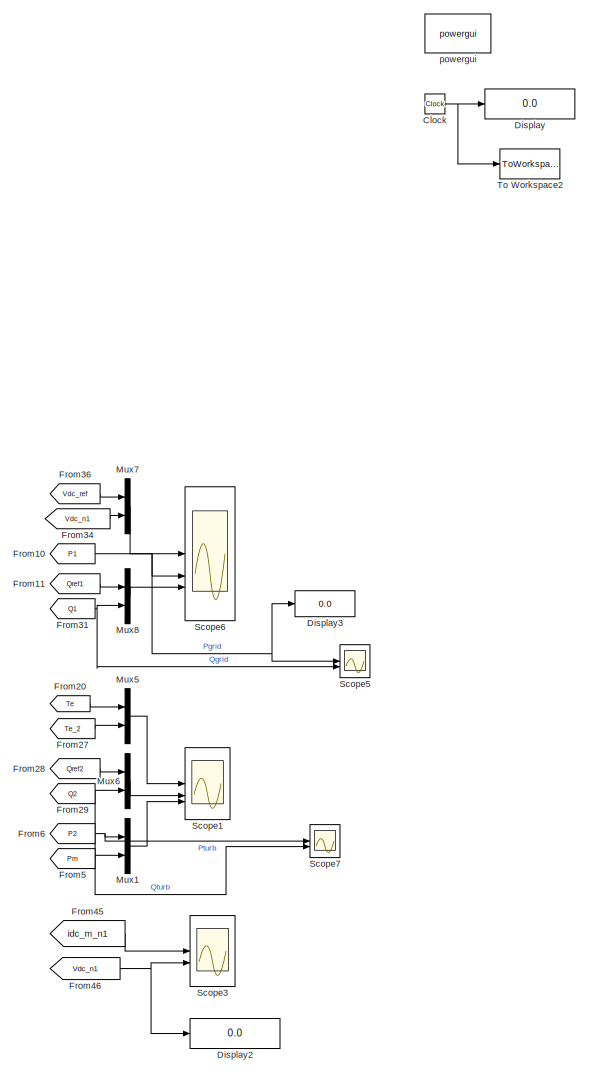
[diagram: root canvas - part 1/2, left side, full height]
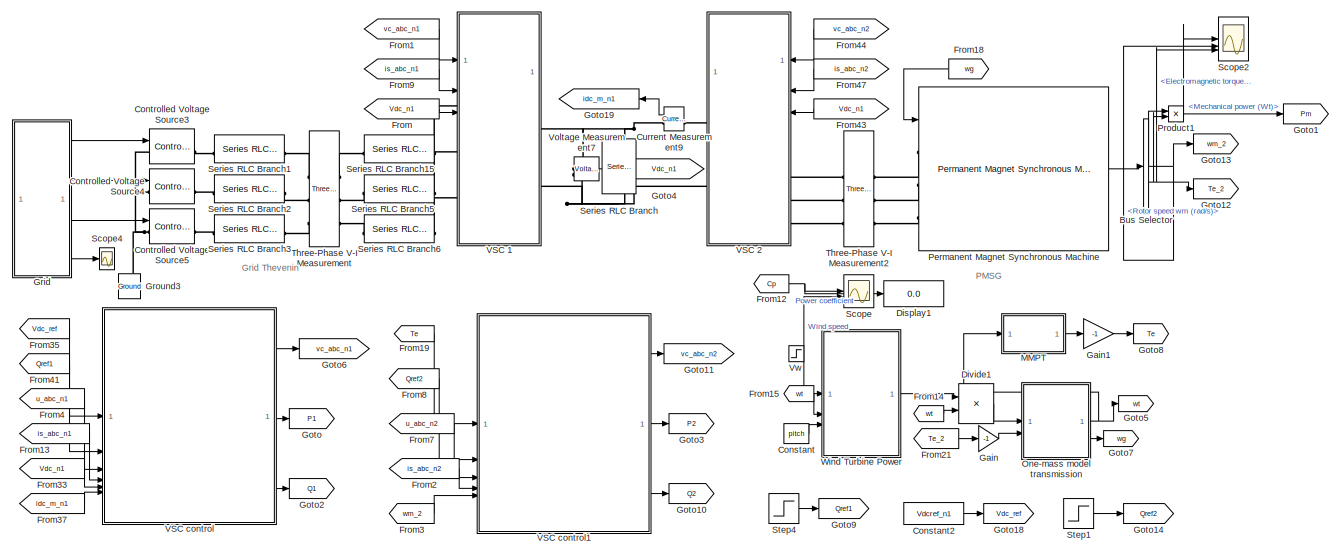
[diagram: root canvas - part 2/2, middle right region]
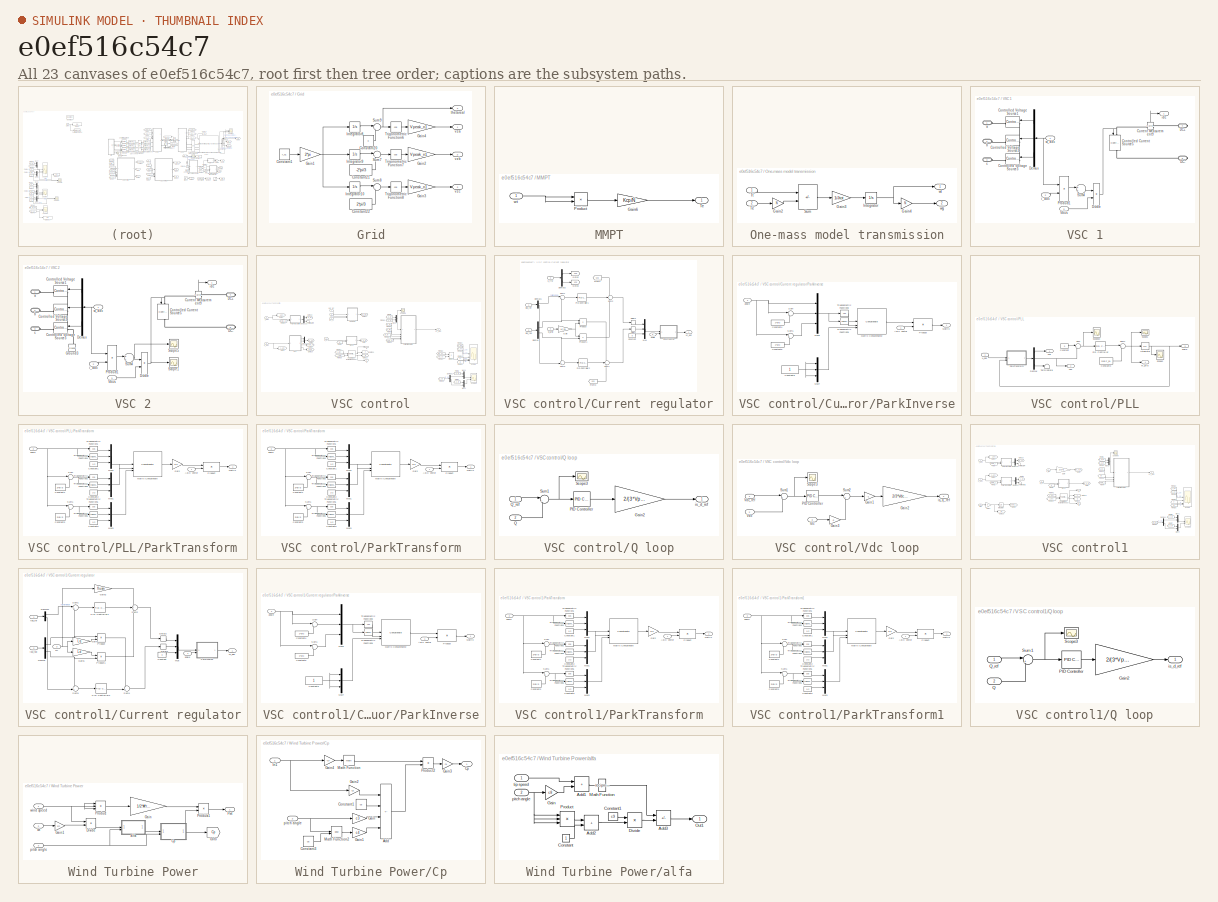
[diagram: thumbnail index - all 23 canvases of the model, root first then tree order]
MODEL slx_e0ef516c54c7
KIND model
CONFIG AbsTol = auto
CONFIG EnableMultiTasking = on
CONFIG FixedStep = 5e-5
CONFIG MaxStep = 1e-4
CONFIG MinStep = 1e-7
CONFIG RelTol = 1e-4
CONFIG SampleTimeConstraint = Unconstrained
CONFIG SolverName = ode45
CONFIG StartTime = 0.0
CONFIG StopTime = Tsim
BLOCK [BusSelector] Bus Selector
  OutputSignals = Rotor speed wm (rad/s),Electromagnetic torque Te (N*m)
BLOCK [Clock] Clock
BLOCK [Constant] Constant
  Value = pitch
BLOCK [Constant] Constant2
  Value = Vdcref_n1
BLOCK [Reference] Controlled Voltage Source3  REF=spsControlledVoltageSourceLib/Controlled Voltage Source
  LibrarySourceBlock = sps_lib/Sources/Controlled Voltage Source
  SourceBlock = spsControlledVoltageSourceLib/Controlled Voltage Source
  SourceType = Controlled Voltage Source
BLOCK [Reference] Controlled Voltage Source4  REF=spsControlledVoltageSourceLib/Controlled Voltage Source
  LibrarySourceBlock = sps_lib/Sources/Controlled Voltage Source
  SourceBlock = spsControlledVoltageSourceLib/Controlled Voltage Source
  SourceType = Controlled Voltage Source
BLOCK [Reference] Controlled Voltage Source5  REF=spsControlledVoltageSourceLib/Controlled Voltage Source
  LibrarySourceBlock = sps_lib/Sources/Controlled Voltage Source
  SourceBlock = spsControlledVoltageSourceLib/Controlled Voltage Source
  SourceType = Controlled Voltage Source
BLOCK [Reference] Current Measurement9  REF=spsCurrentMeasurementLib/Current Measurement
  LibrarySourceBlock = sps_lib/Sensors and Measurements/Current Measurement
  SourceBlock = spsCurrentMeasurementLib/Current Measurement
  SourceType = Current Measurement
  UserDataPersistent = on
BLOCK [Display] Display
  Decimation = 1
BLOCK [Display] Display1
  Decimation = 1
BLOCK [Display] Display2
  Decimation = 1
BLOCK [Display] Display3
  Decimation = 1
BLOCK [Product] Divide1
  Inputs = */
BLOCK [From] From
  GotoTag = Vdc_n1
BLOCK [From] From1
  GotoTag = vc_abc_n1
BLOCK [From] From10
  GotoTag = P1
BLOCK [From] From11
  GotoTag = Qref1
BLOCK [From] From12
  GotoTag = Cp
  TagVisibility = global
BLOCK [From] From13
  GotoTag = is_abc_n1
  NameLocation = top
  TagVisibility = global
BLOCK [From] From14
  GotoTag = wt
BLOCK [From] From15
  GotoTag = wt
BLOCK [From] From18
  GotoTag = wg
  NameLocation = top
BLOCK [From] From19
  GotoTag = Te
BLOCK [From] From2
  GotoTag = is_abc_n2
  NameLocation = top
  TagVisibility = global
BLOCK [From] From20
  GotoTag = Te
BLOCK [From] From21
  GotoTag = Te_2
BLOCK [From] From27
  GotoTag = Te_2
BLOCK [From] From28
  GotoTag = Qref2
BLOCK [From] From29
  GotoTag = Q2
BLOCK [From] From3
  GotoTag = wm_2
BLOCK [From] From31
  GotoTag = Q1
BLOCK [From] From33
  GotoTag = Vdc_n1
BLOCK [From] From34
  GotoTag = Vdc_n1
BLOCK [From] From35
  GotoTag = Vdc_ref
BLOCK [From] From36
  GotoTag = Vdc_ref
BLOCK [From] From37
  GotoTag = idc_m_n1
BLOCK [From] From4
  GotoTag = u_abc_n1
  TagVisibility = global
BLOCK [From] From41
  GotoTag = Qref1
BLOCK [From] From43
  GotoTag = Vdc_n1
BLOCK [From] From44
  GotoTag = vc_abc_n2
BLOCK [From] From45
  GotoTag = idc_m_n1
BLOCK [From] From46
  GotoTag = Vdc_n1
BLOCK [From] From47
  GotoTag = is_abc_n2
  NameLocation = top
  TagVisibility = global
BLOCK [From] From5
  GotoTag = Pm
BLOCK [From] From6
  GotoTag = P2
BLOCK [From] From7
  GotoTag = u_abc_n2
  TagVisibility = global
BLOCK [From] From8
  GotoTag = Qref2
BLOCK [From] From9
  GotoTag = is_abc_n1
  NameLocation = top
  TagVisibility = global
BLOCK [Gain] Gain
  Gain = -1
BLOCK [Gain] Gain1
  Gain = -1
BLOCK [Goto] Goto
  GotoTag = P1
BLOCK [Goto] Goto1
  GotoTag = Pm
BLOCK [Goto] Goto10
  GotoTag = Q2
BLOCK [Goto] Goto11
  GotoTag = vc_abc_n2
BLOCK [Goto] Goto12
  GotoTag = Te_2
BLOCK [Goto] Goto13
  GotoTag = wm_2
BLOCK [Goto] Goto14
  GotoTag = Qref2
BLOCK [Goto] Goto18
  GotoTag = Vdc_ref
BLOCK [Goto] Goto19
  GotoTag = idc_m_n1
  NameLocation = top
BLOCK [Goto] Goto2
  GotoTag = Q1
BLOCK [Goto] Goto3
  GotoTag = P2
BLOCK [Goto] Goto4
  GotoTag = Vdc_n1
BLOCK [Goto] Goto5
  GotoTag = wt
BLOCK [Goto] Goto6
  GotoTag = vc_abc_n1
BLOCK [Goto] Goto7
  GotoTag = wg
BLOCK [Goto] Goto8
  GotoTag = Te
BLOCK [Goto] Goto9
  GotoTag = Qref1
BLOCK [SubSystem] Grid
BLOCK [Constant] Grid/Constant1
  Value = f_n1
BLOCK [Constant] Grid/Constant20
  Value = 0
BLOCK [Constant] Grid/Constant21
  Value = -2*pi/3
BLOCK [Constant] Grid/Constant22
  Value = 2*pi/3
BLOCK [Gain] Grid/Gain1
  Gain = 2*pi
BLOCK [Gain] Grid/Gain2
  Gain = Vpeak_n1
BLOCK [Gain] Grid/Gain3
  Gain = Vpeak_n1
BLOCK [Gain] Grid/Gain4
  Gain = Vpeak_n1
BLOCK [Integrator] Grid/Integrator10
BLOCK [Integrator] Grid/Integrator8
BLOCK [Integrator] Grid/Integrator9
BLOCK [Sum] Grid/Sum7
  Inputs = |++
BLOCK [Sum] Grid/Sum8
  Inputs = |++
BLOCK [Sum] Grid/Sum9
  Inputs = |++
BLOCK [Trigonometry] Grid/Trigonometric Function6
  Operator = cos
BLOCK [Trigonometry] Grid/Trigonometric Function7
  Operator = cos
BLOCK [Trigonometry] Grid/Trigonometric Function8
  Operator = cos
BLOCK [Outport] Grid/thetareal
  Port = 4
BLOCK [Outport] Grid/vza
BLOCK [Outport] Grid/vzb
  Port = 2
BLOCK [Outport] Grid/vzc
  Port = 3
BLOCK [Reference] Ground3  REF=spsGroundLib/Ground
  LibrarySourceBlock = sps_lib/Utilities/Ground
  NameLocation = right
  SourceBlock = spsGroundLib/Ground
  SourceType = Ground
BLOCK [SubSystem] MMPT
BLOCK [Gain] MMPT/Gain6
  Gain = Kcp/N
BLOCK [Product] MMPT/Product
BLOCK [Outport] MMPT/Te
BLOCK [Inport] MMPT/wt
BLOCK [Mux] Mux1
  DisplayOption = bar
  Inputs = 2
BLOCK [Mux] Mux5
  DisplayOption = bar
  Inputs = 2
BLOCK [Mux] Mux6
  DisplayOption = bar
  Inputs = 2
BLOCK [Mux] Mux7
  DisplayOption = bar
  Inputs = 2
BLOCK [Mux] Mux8
  DisplayOption = bar
  Inputs = 2
BLOCK [SubSystem] One-mass model transmission
BLOCK [Gain] One-mass model transmission/Gain2
  Gain = N
BLOCK [Gain] One-mass model transmission/Gain3
  Gain = 1/Jtot
BLOCK [Gain] One-mass model transmission/Gain4
  Gain = N
BLOCK [Integrator] One-mass model transmission/Integrator
  InitialCondition = 1
BLOCK [Sum] One-mass model transmission/Sum
  IconShape = rectangular
  Inputs = +-
BLOCK [Inport] One-mass model transmission/Te
  Port = 2
BLOCK [Inport] One-mass model transmission/Tt
BLOCK [Outport] One-mass model transmission/wg
  Port = 2
BLOCK [Outport] One-mass model transmission/wt
BLOCK [Reference] Permanent Magnet Synchronous Machine  REF=spsPermanentMagnetSynchronousMachineLib/Permanent Magnet
Synchronous Machine
  LibrarySourceBlock = sps_lib/Electrical Machines/Permanent Magnet\nSynchronous Machine
  SourceBlock = spsPermanentMagnetSynchronousMachineLib/Permanent Magnet\nSynchronous Machine
  SourceType = Permanent Magnet Synchronous Machine
BLOCK [Product] Product1
BLOCK [Scope] Scope
  Floating = off
  NumInputPorts = 2
  ScopeSpecificationString = Simulink.scopes.TimeScopeBlockCfg('CurrentConfiguration', extmgr.ConfigurationSet(extmgr.Configuration('Core','General UI',true,'FigureColor',[1 1 1]),extmgr.Configuration('Core','Source UI',true),extmgr.Configuration('Sources','WiredSimulink',true,'DataLoggingVariableName','ScopeData1'),extmgr.Configuration('Visuals','Time Domain',true,'SerializedDisplays',{struct('MinYLimReal','0.30816','MaxYLim...<+2544ch>
BLOCK [Scope] Scope1
  Floating = off
  NumInputPorts = 3
  ScopeSpecificationString = Simulink.scopes.TimeScopeBlockCfg('CurrentConfiguration', extmgr.ConfigurationSet(extmgr.Configuration('Core','General UI',true),extmgr.Configuration('Core','Source UI',true),extmgr.Configuration('Sources','WiredSimulink',true,'DataLoggingVariableName','ScopeData1'),extmgr.Configuration('Visuals','Time Domain',true,'SerializedDisplays',{struct('MinYLimReal','-8411.26863','MaxYLimReal','1020.10277'...<+2823ch>
BLOCK [Scope] Scope2
  Floating = off
  NumInputPorts = 3
  ScopeSpecificationString = Simulink.scopes.TimeScopeBlockCfg('CurrentConfiguration', extmgr.ConfigurationSet(extmgr.Configuration('Core','General UI',true,'FigureColor',[1 1 1]),extmgr.Configuration('Core','Source UI',true),extmgr.Configuration('Sources','WiredSimulink',true,'DataLoggingVariableName','ScopeData2'),extmgr.Configuration('Visuals','Time Domain',true,'SerializedDisplays',{struct('MinYLimReal','-1052933.4201','M...<+2994ch>
BLOCK [Scope] Scope3
  Floating = off
  NumInputPorts = 2
  ScopeSpecificationString = Simulink.scopes.TimeScopeBlockCfg('CurrentConfiguration', extmgr.ConfigurationSet(extmgr.Configuration('Core','General UI',true),extmgr.Configuration('Core','Source UI',true),extmgr.Configuration('Sources','WiredSimulink',true,'DataLoggingVariableName','ScopeData1'),extmgr.Configuration('Visuals','Time Domain',true,'SerializedDisplays',{struct('MinYLimReal','-26.83195','MaxYLimReal','2.98133','YLa...<+2047ch>
BLOCK [Scope] Scope4
  Floating = off
  NumInputPorts = 1
  ScopeSpecificationString = Simulink.scopes.TimeScopeBlockCfg('CurrentConfiguration', extmgr.ConfigurationSet(extmgr.Configuration('Core','General UI',true),extmgr.Configuration('Core','Source UI',true),extmgr.Configuration('Sources','WiredSimulink',true,'DataLoggingVariableName','ScopeData2'),extmgr.Configuration('Visuals','Time Domain',true,'SerializedDisplays',{struct('MinYLimReal','-12.63191','MaxYLimReal','113.68717','Y...<+1451ch>
BLOCK [Scope] Scope5
  Floating = off
  NumInputPorts = 2
  ScopeSpecificationString = Simulink.scopes.TimeScopeBlockCfg('CurrentConfiguration', extmgr.ConfigurationSet(extmgr.Configuration('Core','General UI',true,'FigureColor',[1 1 1]),extmgr.Configuration('Core','Source UI',true),extmgr.Configuration('Sources','WiredSimulink',true,'DataLoggingVariableName','ScopeData3'),extmgr.Configuration('Visuals','Time Domain',true,'SerializedDisplays',{struct('MinYLimReal','-150000.00000','M...<+1653ch>
BLOCK [Scope] Scope6
  Floating = off
  NumInputPorts = 3
  ScopeSpecificationString = Simulink.scopes.TimeScopeBlockCfg('CurrentConfiguration', extmgr.ConfigurationSet(extmgr.Configuration('Core','General UI',true),extmgr.Configuration('Core','Source UI',true),extmgr.Configuration('Sources','WiredSimulink',true,'DataLoggingVariableName','ScopeData2'),extmgr.Configuration('Visuals','Time Domain',true,'SerializedDisplays',{struct('MinYLimReal','1199.67182','MaxYLimReal','1202.69493',...<+2785ch>
BLOCK [Scope] Scope7
  Floating = off
  NumInputPorts = 2
  ScopeSpecificationString = Simulink.scopes.TimeScopeBlockCfg('CurrentConfiguration', extmgr.ConfigurationSet(extmgr.Configuration('Core','General UI',true,'FigureColor',[1 1 1]),extmgr.Configuration('Core','Source UI',true),extmgr.Configuration('Sources','WiredSimulink',true,'DataLoggingVariableName','ScopeData4'),extmgr.Configuration('Visuals','Time Domain',true,'SerializedDisplays',{struct('MinYLimReal','-1036108.83399','...<+2173ch>
BLOCK [Reference] Series RLC Branch  REF=spsSeriesRLCBranchLib/Series RLC Branch
  LibrarySourceBlock = sps_lib/Passives/Series RLC Branch
  NameLocation = left
  SourceBlock = spsSeriesRLCBranchLib/Series RLC Branch
  SourceType = Series RLC Branch
BLOCK [Reference] Series RLC Branch1  REF=spsSeriesRLCBranchLib/Series RLC Branch
  LibrarySourceBlock = sps_lib/Passives/Series RLC Branch
  SourceBlock = spsSeriesRLCBranchLib/Series RLC Branch
  SourceType = Series RLC Branch
BLOCK [Reference] Series RLC Branch15  REF=spsSeriesRLCBranchLib/Series RLC Branch
  LibrarySourceBlock = sps_lib/Passives/Series RLC Branch
  SourceBlock = spsSeriesRLCBranchLib/Series RLC Branch
  SourceType = Series RLC Branch
BLOCK [Reference] Series RLC Branch2  REF=spsSeriesRLCBranchLib/Series RLC Branch
  LibrarySourceBlock = sps_lib/Passives/Series RLC Branch
  SourceBlock = spsSeriesRLCBranchLib/Series RLC Branch
  SourceType = Series RLC Branch
BLOCK [Reference] Series RLC Branch3  REF=spsSeriesRLCBranchLib/Series RLC Branch
  LibrarySourceBlock = sps_lib/Passives/Series RLC Branch
  SourceBlock = spsSeriesRLCBranchLib/Series RLC Branch
  SourceType = Series RLC Branch
BLOCK [Reference] Series RLC Branch5  REF=spsSeriesRLCBranchLib/Series RLC Branch
  LibrarySourceBlock = sps_lib/Passives/Series RLC Branch
  SourceBlock = spsSeriesRLCBranchLib/Series RLC Branch
  SourceType = Series RLC Branch
BLOCK [Reference] Series RLC Branch6  REF=spsSeriesRLCBranchLib/Series RLC Branch
  LibrarySourceBlock = sps_lib/Passives/Series RLC Branch
  SourceBlock = spsSeriesRLCBranchLib/Series RLC Branch
  SourceType = Series RLC Branch
BLOCK [Step] Step1
  After = 0
  SampleTime = 0
  Time = t_step_Q
BLOCK [Step] Step4
  After = Q_set*1.2
  Before = Q_set
  SampleTime = 0
  Time = t_step_Q
BLOCK [Reference] Three-Phase V-I Measurement  REF=spsThreePhaseVIMeasurementLib/Three-Phase
V-I Measurement
  LibrarySourceBlock = sps_lib/Sensors and Measurements/Three-Phase\nV-I Measurement
  SourceBlock = spsThreePhaseVIMeasurementLib/Three-Phase\nV-I Measurement
  SourceType = Three-Phase VI Measurement
BLOCK [Reference] Three-Phase V-I Measurement2  REF=spsThreePhaseVIMeasurementLib/Three-Phase
V-I Measurement
  LibrarySourceBlock = sps_lib/Sensors and Measurements/Three-Phase\nV-I Measurement
  SourceBlock = spsThreePhaseVIMeasurementLib/Three-Phase\nV-I Measurement
  SourceType = Three-Phase VI Measurement
BLOCK [ToWorkspace] To Workspace2
  FixptAsFi = on
  MaxDataPoints = inf
  SampleTime = -1
  VariableName = tnolin
BLOCK [SubSystem] VSC 1
BLOCK [Reference] VSC 1/Controlled Current Source5  REF=spsControlledCurrentSourceLib/Controlled Current Source
  LibrarySourceBlock = sps_lib/Sources/Controlled Current Source
  NameLocation = left
  SourceBlock = spsControlledCurrentSourceLib/Controlled Current Source
  SourceType = Controlled Current Source
BLOCK [Reference] VSC 1/Controlled Voltage Source1  REF=spsControlledVoltageSourceLib/Controlled Voltage Source
  LibrarySourceBlock = sps_lib/Sources/Controlled Voltage Source
  NameLocation = top
  SourceBlock = spsControlledVoltageSourceLib/Controlled Voltage Source
  SourceType = Controlled Voltage Source
BLOCK [Reference] VSC 1/Controlled Voltage Source2  REF=spsControlledVoltageSourceLib/Controlled Voltage Source
  LibrarySourceBlock = sps_lib/Sources/Controlled Voltage Source
  NameLocation = top
  SourceBlock = spsControlledVoltageSourceLib/Controlled Voltage Source
  SourceType = Controlled Voltage Source
BLOCK [Reference] VSC 1/Controlled Voltage Source3  REF=spsControlledVoltageSourceLib/Controlled Voltage Source
  LibrarySourceBlock = sps_lib/Sources/Controlled Voltage Source
  NameLocation = top
  SourceBlock = spsControlledVoltageSourceLib/Controlled Voltage Source
  SourceType = Controlled Voltage Source
BLOCK [Reference] VSC 1/Current Measurement9  REF=spsCurrentMeasurementLib/Current Measurement
  LibrarySourceBlock = sps_lib/Sensors and Measurements/Current Measurement
  NameLocation = top
  SourceBlock = spsCurrentMeasurementLib/Current Measurement
  SourceType = Current Measurement
  UserDataPersistent = on
BLOCK [PMIOPort] VSC 1/DC+
  NameLocation = top
  Port = 4
  Side = Right
BLOCK [PMIOPort] VSC 1/DC-
  NameLocation = top
  Port = 5
  Side = Right
BLOCK [Demux] VSC 1/Demux
  NameLocation = top
  Outputs = 3
BLOCK [Product] VSC 1/Divide
  Inputs = */
BLOCK [Product] VSC 1/Product1
  InputSameDT = on
  OutDataTypeStr = Inherit: Same as first input
  SaturateOnIntegerOverflow = on
BLOCK [Sum] VSC 1/Sum4
  InputSameDT = on
  Inputs = 1
  OutDataTypeStr = Inherit: Same as first input
  SaturateOnIntegerOverflow = on
BLOCK [Inport] VSC 1/Vbus
  Port = 3
BLOCK [PMIOPort] VSC 1/a
  Side = Left
BLOCK [PMIOPort] VSC 1/b
  Port = 2
  Side = Left
BLOCK [PMIOPort] VSC 1/c
  Port = 3
  Side = Left
BLOCK [Inport] VSC 1/i_abc
  Port = 2
BLOCK [Outport] VSC 1/idc
BLOCK [Inport] VSC 1/vc_abc
  NameLocation = top
BLOCK [SubSystem] VSC 2
BLOCK [Reference] VSC 2/Controlled Current Source5  REF=spsControlledCurrentSourceLib/Controlled Current Source
  LibrarySourceBlock = sps_lib/Sources/Controlled Current Source
  NameLocation = left
  SourceBlock = spsControlledCurrentSourceLib/Controlled Current Source
  SourceType = Controlled Current Source
BLOCK [Reference] VSC 2/Controlled Voltage Source1  REF=spsControlledVoltageSourceLib/Controlled Voltage Source
  LibrarySourceBlock = sps_lib/Sources/Controlled Voltage Source
  NameLocation = top
  SourceBlock = spsControlledVoltageSourceLib/Controlled Voltage Source
  SourceType = Controlled Voltage Source
BLOCK [Reference] VSC 2/Controlled Voltage Source2  REF=spsControlledVoltageSourceLib/Controlled Voltage Source
  LibrarySourceBlock = sps_lib/Sources/Controlled Voltage Source
  NameLocation = top
  SourceBlock = spsControlledVoltageSourceLib/Controlled Voltage Source
  SourceType = Controlled Voltage Source
BLOCK [Reference] VSC 2/Controlled Voltage Source3  REF=spsControlledVoltageSourceLib/Controlled Voltage Source
  LibrarySourceBlock = sps_lib/Sources/Controlled Voltage Source
  NameLocation = top
  SourceBlock = spsControlledVoltageSourceLib/Controlled Voltage Source
  SourceType = Controlled Voltage Source
BLOCK [Reference] VSC 2/Current Measurement9  REF=spsCurrentMeasurementLib/Current Measurement
  LibrarySourceBlock = sps_lib/Sensors and Measurements/Current Measurement
  NameLocation = top
  SourceBlock = spsCurrentMeasurementLib/Current Measurement
  SourceType = Current Measurement
  UserDataPersistent = on
BLOCK [PMIOPort] VSC 2/DC+
  NameLocation = top
  Port = 4
  Side = Right
BLOCK [PMIOPort] VSC 2/DC-
  NameLocation = top
  Port = 5
  Side = Right
BLOCK [Demux] VSC 2/Demux
  NameLocation = top
  Outputs = 3
BLOCK [Product] VSC 2/Divide
  Inputs = */
BLOCK [Reference] VSC 2/Ground3  REF=spsGroundLib/Ground
  LibrarySourceBlock = sps_lib/Utilities/Ground
  NameLocation = right
  SourceBlock = spsGroundLib/Ground
  SourceType = Ground
BLOCK [Product] VSC 2/Product1
  InputSameDT = on
  OutDataTypeStr = Inherit: Same as first input
  SaturateOnIntegerOverflow = on
BLOCK [Scope] VSC 2/Scope1
  Floating = off
  NumInputPorts = 1
  ScopeSpecificationString = Simulink.scopes.TimeScopeBlockCfg('CurrentConfiguration', extmgr.ConfigurationSet(extmgr.Configuration('Core','General UI',true),extmgr.Configuration('Core','Source UI',true),extmgr.Configuration('Sources','WiredSimulink',true,'DataLoggingVariableName','ScopeData5'),extmgr.Configuration('Visuals','Time Domain',true,'SerializedDisplays',{struct('MinYLimReal','-55470.77097','MaxYLimReal','499236.510...<+1418ch>
BLOCK [Scope] VSC 2/Scope5
  Floating = off
  NumInputPorts = 1
  ScopeSpecificationString = Simulink.scopes.TimeScopeBlockCfg('CurrentConfiguration', extmgr.ConfigurationSet(extmgr.Configuration('Core','General UI',true),extmgr.Configuration('Core','Source UI',true),extmgr.Configuration('Sources','WiredSimulink',true,'DataLoggingVariableName','ScopeData4'),extmgr.Configuration('Visuals','Time Domain',true,'SerializedDisplays',{struct('MinYLimReal','76074082.56062','MaxYLimReal','25880116...<+1440ch>
BLOCK [Sum] VSC 2/Sum4
  InputSameDT = on
  Inputs = 1
  OutDataTypeStr = Inherit: Same as first input
  SaturateOnIntegerOverflow = on
BLOCK [Inport] VSC 2/Vbus
  Port = 3
BLOCK [PMIOPort] VSC 2/a
  Side = Left
BLOCK [PMIOPort] VSC 2/b
  Port = 2
  Side = Left
BLOCK [PMIOPort] VSC 2/c
  Port = 3
  Side = Left
BLOCK [Inport] VSC 2/i_abc
  Port = 2
BLOCK [Outport] VSC 2/idc
BLOCK [Inport] VSC 2/vc_abc
  NameLocation = top
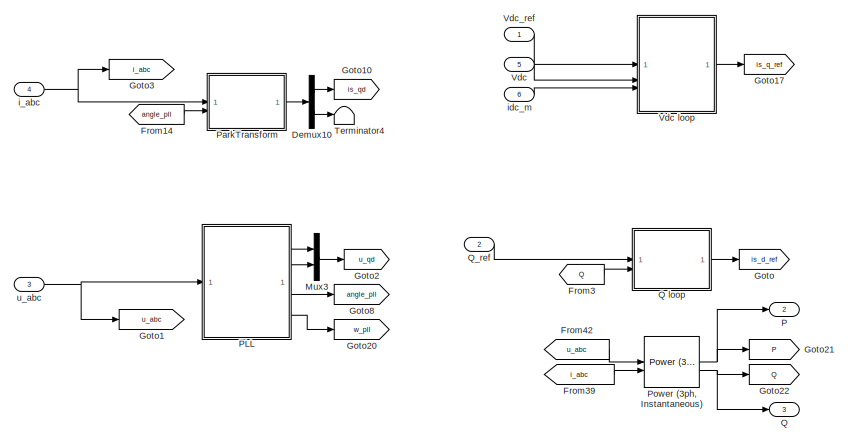
[diagram: VSC control - part 1/2, middle left region]
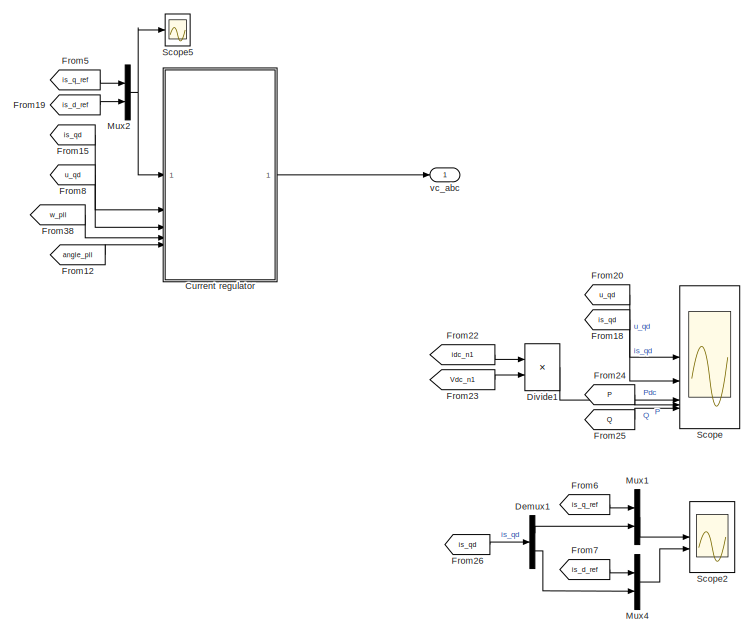
[diagram: VSC control - part 2/2, right side, full height]
BLOCK [SubSystem] VSC control
BLOCK [SubSystem] VSC control/Current regulator
BLOCK [Constant] VSC control/Current regulator/Constant
  Value = 0
BLOCK [Delay] VSC control/Current regulator/Delay1
  DelayLength = 1
  InitialCondition = 0
  InputPortMap = u0
  SampleTime = magnitud_delay
BLOCK [Delay] VSC control/Current regulator/Delay2
  DelayLength = 1
  InitialCondition = Vpeak_n1
  InputPortMap = u0
  SampleTime = magnitud_delay
BLOCK [Demux] VSC control/Current regulator/Demux
  Outputs = 2
BLOCK [Demux] VSC control/Current regulator/Demux1
  Outputs = 2
BLOCK [Demux] VSC control/Current regulator/Demux2
  Outputs = 2
BLOCK [From] VSC control/Current regulator/From2
  GotoTag = Vzq
BLOCK [From] VSC control/Current regulator/From3
  GotoTag = Vzd
BLOCK [Gain] VSC control/Current regulator/Gain
  Gain = Lc_n1
BLOCK [Goto] VSC control/Current regulator/Goto2
  GotoTag = Vzq
BLOCK [Goto] VSC control/Current regulator/Goto3
  GotoTag = Vzd
BLOCK [Mux] VSC control/Current regulator/Mux
  DisplayOption = bar
  Inputs = 3
BLOCK [Reference] VSC control/Current regulator/PID Controller1  REF=slpidlib/PID Controller
  SourceBlock = slpidlib/PID Controller
  SourceType = PID 1dof
BLOCK [Reference] VSC control/Current regulator/PID Controller2  REF=slpidlib/PID Controller
  SourceBlock = slpidlib/PID Controller
  SourceType = PID 1dof
BLOCK [SubSystem] VSC control/Current regulator/ParkInverse
BLOCK [Inport] VSC control/Current regulator/ParkInverse/ABC vector
BLOCK [Constant] VSC control/Current regulator/ParkInverse/Constant4
  Value = 2*pi/3
BLOCK [Constant] VSC control/Current regulator/ParkInverse/Constant5
  Value = 2*pi/3
BLOCK [Constant] VSC control/Current regulator/ParkInverse/Constant9
BLOCK [Outport] VSC control/Current regulator/ParkInverse/Matrix
BLOCK [Concatenate] VSC control/Current regulator/ParkInverse/Matrix Concatenate2
  ConcatenateDimension = 2
  Mode = Multidimensional array
  NumInputs = 3
BLOCK [Mux] VSC control/Current regulator/ParkInverse/Mux6
  DisplayOption = bar
  Inputs = 3
BLOCK [Mux] VSC control/Current regulator/ParkInverse/Mux7
  DisplayOption = bar
  Inputs = 3
BLOCK [Product] VSC control/Current regulator/ParkInverse/Product
  Multiplication = Matrix(*)
  RndMeth = Zero
BLOCK [Sum] VSC control/Current regulator/ParkInverse/Sum
  Inputs = |+-
BLOCK [Sum] VSC control/Current regulator/ParkInverse/Sum1
  Inputs = |++
BLOCK [Trigonometry] VSC control/Current regulator/ParkInverse/Trigonometric Function8
  Operator = cos
BLOCK [Trigonometry] VSC control/Current regulator/ParkInverse/Trigonometric Function9
BLOCK [Inport] VSC control/Current regulator/ParkInverse/angle
  Port = 2
BLOCK [Product] VSC control/Current regulator/Product
  RndMeth = Zero
BLOCK [Product] VSC control/Current regulator/Product1
  RndMeth = Zero
BLOCK [Sum] VSC control/Current regulator/Sum1
  Inputs = |+-
BLOCK [Sum] VSC control/Current regulator/Sum2
  Inputs = +++
BLOCK [Sum] VSC control/Current regulator/Sum3
  Inputs = -+|
BLOCK [Sum] VSC control/Current regulator/Sum4
  Inputs = -++
BLOCK [Inport] VSC control/Current regulator/angle
  Port = 5
BLOCK [Inport] VSC control/Current regulator/iqd_fdb
  Port = 2
BLOCK [Inport] VSC control/Current regulator/iqd_ref
BLOCK [Inport] VSC control/Current regulator/u_ffw
  Port = 3
BLOCK [Outport] VSC control/Current regulator/vc_abc
BLOCK [Inport] VSC control/Current regulator/w_grid
  Port = 4
BLOCK [Demux] VSC control/Demux1
  Outputs = 2
BLOCK [Demux] VSC control/Demux10
  Outputs = 2
BLOCK [Product] VSC control/Divide1
  Inputs = **
BLOCK [From] VSC control/From12
  GotoTag = angle_pll
BLOCK [From] VSC control/From14
  GotoTag = angle_pll
BLOCK [From] VSC control/From15
  GotoTag = is_qd
BLOCK [From] VSC control/From18
  GotoTag = is_qd
BLOCK [From] VSC control/From19
  GotoTag = is_d_ref
BLOCK [From] VSC control/From20
  GotoTag = u_qd
BLOCK [From] VSC control/From22
  GotoTag = idc_n1
BLOCK [From] VSC control/From23
  GotoTag = Vdc_n1
BLOCK [From] VSC control/From24
  GotoTag = P
BLOCK [From] VSC control/From25
  GotoTag = Q
BLOCK [From] VSC control/From26
  GotoTag = is_qd
BLOCK [From] VSC control/From3
  GotoTag = Q
BLOCK [From] VSC control/From38
  GotoTag = w_pll
BLOCK [From] VSC control/From39
  GotoTag = i_abc
  NameLocation = top
BLOCK [From] VSC control/From42
  GotoTag = u_abc
BLOCK [From] VSC control/From5
  GotoTag = is_q_ref
BLOCK [From] VSC control/From6
  GotoTag = is_q_ref
BLOCK [From] VSC control/From7
  GotoTag = is_d_ref
BLOCK [From] VSC control/From8
  GotoTag = u_qd
BLOCK [Goto] VSC control/Goto
  GotoTag = is_d_ref
BLOCK [Goto] VSC control/Goto1
  GotoTag = u_abc
BLOCK [Goto] VSC control/Goto10
  GotoTag = is_qd
BLOCK [Goto] VSC control/Goto17
  GotoTag = is_q_ref
BLOCK [Goto] VSC control/Goto2
  GotoTag = u_qd
BLOCK [Goto] VSC control/Goto20
  GotoTag = w_pll
BLOCK [Goto] VSC control/Goto21
  GotoTag = P
BLOCK [Goto] VSC control/Goto22
  GotoTag = Q
BLOCK [Goto] VSC control/Goto3
  GotoTag = i_abc
BLOCK [Goto] VSC control/Goto8
  GotoTag = angle_pll
BLOCK [Mux] VSC control/Mux1
  DisplayOption = bar
  Inputs = 2
BLOCK [Mux] VSC control/Mux2
  DisplayOption = bar
  Inputs = 2
BLOCK [Mux] VSC control/Mux3
  DisplayOption = bar
  Inputs = 2
BLOCK [Mux] VSC control/Mux4
  DisplayOption = bar
  Inputs = 2
BLOCK [Outport] VSC control/P
  Port = 2
BLOCK [SubSystem] VSC control/PLL
BLOCK [Constant] VSC control/PLL/Constant
  Value = 0
BLOCK [Constant] VSC control/PLL/Constant3
  Value = 2*pi*f_n1
BLOCK [Demux] VSC control/PLL/Demux
  Outputs = 3
BLOCK [Integrator] VSC control/PLL/Integrator
BLOCK [Reference] VSC control/PLL/PID Controller  REF=slpidlib/PID Controller
  SourceBlock = slpidlib/PID Controller
  SourceType = PID 1dof
BLOCK [SubSystem] VSC control/PLL/ParkTransform
BLOCK [Inport] VSC control/PLL/ParkTransform/ABC vector
BLOCK [Constant] VSC control/PLL/ParkTransform/Constant1
  Value = 1/2
BLOCK [Constant] VSC control/PLL/ParkTransform/Constant2
  Value = 1/2
BLOCK [Constant] VSC control/PLL/ParkTransform/Constant3
  Value = 2*pi/3
BLOCK [Constant] VSC control/PLL/ParkTransform/Constant4
  Value = 2*pi/3
BLOCK [Constant] VSC control/PLL/ParkTransform/Constant5
  Value = 1/2
BLOCK [Gain] VSC control/PLL/ParkTransform/Gain
  Gain = 2/3
BLOCK [Outport] VSC control/PLL/ParkTransform/Matrix
BLOCK [Concatenate] VSC control/PLL/ParkTransform/Matrix Concatenate
  ConcatenateDimension = 2
  Mode = Multidimensional array
  NumInputs = 3
BLOCK [Mux] VSC control/PLL/ParkTransform/Mux1
  DisplayOption = bar
  Inputs = 3
BLOCK [Mux] VSC control/PLL/ParkTransform/Mux2
  DisplayOption = bar
  Inputs = 3
BLOCK [Mux] VSC control/PLL/ParkTransform/Mux3
  DisplayOption = bar
  Inputs = 3
BLOCK [Product] VSC control/PLL/ParkTransform/Product
  Multiplication = Matrix(*)
  RndMeth = Zero
BLOCK [Sum] VSC control/PLL/ParkTransform/Sum
  Inputs = |+-
BLOCK [Sum] VSC control/PLL/ParkTransform/Sum1
  Inputs = |++
BLOCK [Trigonometry] VSC control/PLL/ParkTransform/Trigonometric Function1
  Operator = cos
BLOCK [Trigonometry] VSC control/PLL/ParkTransform/Trigonometric Function2
  Operator = cos
BLOCK [Trigonometry] VSC control/PLL/ParkTransform/Trigonometric Function3
BLOCK [Trigonometry] VSC control/PLL/ParkTransform/Trigonometric Function4
BLOCK [Trigonometry] VSC control/PLL/ParkTransform/Trigonometric Function5
  Operator = cos
BLOCK [Trigonometry] VSC control/PLL/ParkTransform/Trigonometric Function6
BLOCK [Inport] VSC control/PLL/ParkTransform/angle
  Port = 2
BLOCK [Scope] VSC control/PLL/Scope1
  Floating = off
  NumInputPorts = 1
  ScopeSpecificationString = Simulink.scopes.TimeScopeBlockCfg('CurrentConfiguration', extmgr.ConfigurationSet(extmgr.Configuration('Core','General UI',true),extmgr.Configuration('Core','Source UI',true),extmgr.Configuration('Sources','WiredSimulink',true,'DataLoggingVariableName','ScopeData1','DataLoggingSaveFormat','Array','DataLoggingDecimation','1','DataLoggingDecimateData',true),extmgr.Configuration('Visuals','Time Domai...<+1539ch>
BLOCK [Scope] VSC control/PLL/Scope2
  Floating = off
  NumInputPorts = 1
  ScopeSpecificationString = Simulink.scopes.TimeScopeBlockCfg('CurrentConfiguration', extmgr.ConfigurationSet(extmgr.Configuration('Core','General UI',true),extmgr.Configuration('Core','Source UI',true),extmgr.Configuration('Sources','WiredSimulink',true,'DataLoggingVariableName','ScopeData5','DataLoggingSaveFormat','Array','DataLoggingDecimation','1','DataLoggingDecimateData',true),extmgr.Configuration('Visuals','Time Domai...<+1541ch>
BLOCK [Scope] VSC control/PLL/Scope20
  Floating = off
  NumInputPorts = 1
  ScopeSpecificationString = Simulink.scopes.TimeScopeBlockCfg('CurrentConfiguration', extmgr.ConfigurationSet(extmgr.Configuration('Core','General UI',true),extmgr.Configuration('Core','Source UI',true),extmgr.Configuration('Sources','WiredSimulink',true,'DataLoggingVariableName','ScopeData1','DataLoggingSaveFormat','Array','DataLoggingDecimation','1','DataLoggingDecimateData',true),extmgr.Configuration('Visuals','Time Domai...<+1524ch>
BLOCK [Sum] VSC control/PLL/Sum
  Inputs = |+-
BLOCK [Sum] VSC control/PLL/Sum1
  Inputs = |++
BLOCK [Terminator] VSC control/PLL/Terminator8
BLOCK [Outport] VSC control/PLL/Vzd
  Port = 2
BLOCK [Outport] VSC control/PLL/Vzq
BLOCK [Outport] VSC control/PLL/angle
  Port = 3
BLOCK [Inport] VSC control/PLL/u_abc
BLOCK [Outport] VSC control/PLL/w_grid
  Port = 4
BLOCK [SubSystem] VSC control/ParkTransform
BLOCK [Inport] VSC control/ParkTransform/ABC vector
BLOCK [Constant] VSC control/ParkTransform/Constant1
  Value = 1/2
BLOCK [Constant] VSC control/ParkTransform/Constant2
  Value = 1/2
BLOCK [Constant] VSC control/ParkTransform/Constant3
  Value = 2*pi/3
BLOCK [Constant] VSC control/ParkTransform/Constant4
  Value = 2*pi/3
BLOCK [Constant] VSC control/ParkTransform/Constant5
  Value = 1/2
BLOCK [Gain] VSC control/ParkTransform/Gain
  Gain = 2/3
BLOCK [Outport] VSC control/ParkTransform/Matrix
BLOCK [Concatenate] VSC control/ParkTransform/Matrix Concatenate
  ConcatenateDimension = 2
  Mode = Multidimensional array
  NumInputs = 3
BLOCK [Mux] VSC control/ParkTransform/Mux1
  DisplayOption = bar
  Inputs = 3
BLOCK [Mux] VSC control/ParkTransform/Mux2
  DisplayOption = bar
  Inputs = 3
BLOCK [Mux] VSC control/ParkTransform/Mux3
  DisplayOption = bar
  Inputs = 3
BLOCK [Product] VSC control/ParkTransform/Product
  Multiplication = Matrix(*)
  RndMeth = Zero
BLOCK [Sum] VSC control/ParkTransform/Sum
  Inputs = |+-
BLOCK [Sum] VSC control/ParkTransform/Sum1
  Inputs = |++
BLOCK [Trigonometry] VSC control/ParkTransform/Trigonometric Function1
  Operator = cos
BLOCK [Trigonometry] VSC control/ParkTransform/Trigonometric Function2
  Operator = cos
BLOCK [Trigonometry] VSC control/ParkTransform/Trigonometric Function3
BLOCK [Trigonometry] VSC control/ParkTransform/Trigonometric Function4
BLOCK [Trigonometry] VSC control/ParkTransform/Trigonometric Function5
  Operator = cos
BLOCK [Trigonometry] VSC control/ParkTransform/Trigonometric Function6
BLOCK [Inport] VSC control/ParkTransform/angle
  Port = 2
BLOCK [Reference] VSC control/Power (3ph, Instantaneous)  REF=spsPower3phInstantaneousLib/Power
(3ph, Instantaneous)
  LibrarySourceBlock = sps_lib/Sensors and Measurements/Power\n(3ph, Instantaneous)
  SourceBlock = spsPower3phInstantaneousLib/Power\n(3ph, Instantaneous)
  SourceType = Power (3ph, Instantaneous)
BLOCK [Outport] VSC control/Q
  Port = 3
BLOCK [SubSystem] VSC control/Q loop
BLOCK [Gain] VSC control/Q loop/Gain2
  Gain = 2/(3*Vpeak_n1)
BLOCK [Reference] VSC control/Q loop/PID Controller  REF=slpidlib/PID Controller
  SourceBlock = slpidlib/PID Controller
  SourceType = PID 1dof
BLOCK [Inport] VSC control/Q loop/Q
  Port = 2
BLOCK [Inport] VSC control/Q loop/Q_ref
BLOCK [Scope] VSC control/Q loop/Scope3
  Floating = off
  NumInputPorts = 1
  ScopeSpecificationString = Simulink.scopes.TimeScopeBlockCfg('CurrentConfiguration', extmgr.ConfigurationSet(extmgr.Configuration('Core','General UI',true),extmgr.Configuration('Core','Source UI',true),extmgr.Configuration('Sources','WiredSimulink',true,'DataLoggingVariableName','ScopeData7','DataLoggingSaveFormat','Array','DataLoggingDecimation','1','DataLoggingDecimateData',true),extmgr.Configuration('Visuals','Time Domai...<+1547ch>
BLOCK [Sum] VSC control/Q loop/Sum1
  Inputs = |+-
BLOCK [Outport] VSC control/Q loop/is_d_ref
BLOCK [Inport] VSC control/Q_ref
  Port = 2
BLOCK [Scope] VSC control/Scope
  Floating = off
  NumInputPorts = 6
  ScopeSpecificationString = Simulink.scopes.TimeScopeBlockCfg('CurrentConfiguration', extmgr.ConfigurationSet(extmgr.Configuration('Core','General UI',true),extmgr.Configuration('Core','Source UI',true),extmgr.Configuration('Sources','WiredSimulink',true,'DataLoggingVariableName','ScopeData3'),extmgr.Configuration('Visuals','Time Domain',true,'SerializedDisplays',{struct('MinYLimReal','-75.72386','MaxYLimReal','663.12239','Y...<+4920ch>
BLOCK [Scope] VSC control/Scope2
  Floating = off
  NumInputPorts = 2
  ScopeSpecificationString = Simulink.scopes.TimeScopeBlockCfg('CurrentConfiguration', extmgr.ConfigurationSet(extmgr.Configuration('Core','General UI',true),extmgr.Configuration('Core','Source UI',true),extmgr.Configuration('Sources','WiredSimulink',true,'DataLoggingVariableName','ScopeData4'),extmgr.Configuration('Visuals','Time Domain',true,'SerializedDisplays',{struct('MinYLimReal','-0.09247','MaxYLimReal','0.01169','YLab...<+2036ch>
BLOCK [Scope] VSC control/Scope5
  Floating = off
  NumInputPorts = 1
  ScopeSpecificationString = Simulink.scopes.TimeScopeBlockCfg('CurrentConfiguration', extmgr.ConfigurationSet(extmgr.Configuration('Core','General UI',true),extmgr.Configuration('Core','Source UI',true),extmgr.Configuration('Sources','WiredSimulink',true,'DataLoggingVariableName','ScopeData8','DataLoggingSaveFormat','Array','DataLoggingDecimation','1','DataLoggingDecimateData',true),extmgr.Configuration('Visuals','Time Domai...<+1548ch>
BLOCK [Terminator] VSC control/Terminator4
BLOCK [Inport] VSC control/Vdc
  Port = 5
BLOCK [SubSystem] VSC control/Vdc loop
BLOCK [Gain] VSC control/Vdc loop/Gain1
  Gain = -1
BLOCK [Gain] VSC control/Vdc loop/Gain2
  Gain = 2/3*Vdcref_n1/Vpeak_n1
BLOCK [Gain] VSC control/Vdc loop/Gain3
  Gain = 0
BLOCK [Inport] VSC control/Vdc loop/Idc
  Port = 3
BLOCK [Reference] VSC control/Vdc loop/PID Controller  REF=slpidlib/PID Controller
  SourceBlock = slpidlib/PID Controller
  SourceType = PID 1dof
BLOCK [Scope] VSC control/Vdc loop/Scope3
  Floating = off
  NumInputPorts = 1
  ScopeSpecificationString = Simulink.scopes.TimeScopeBlockCfg('CurrentConfiguration', extmgr.ConfigurationSet(extmgr.Configuration('Core','General UI',true),extmgr.Configuration('Core','Source UI',true),extmgr.Configuration('Sources','WiredSimulink',true,'DataLoggingVariableName','ScopeData6','DataLoggingSaveFormat','Array','DataLoggingDecimation','1','DataLoggingDecimateData',true),extmgr.Configuration('Visuals','Time Domai...<+1525ch>
BLOCK [Sum] VSC control/Vdc loop/Sum1
  Inputs = |+-
BLOCK [Sum] VSC control/Vdc loop/Sum2
  Inputs = |+-
BLOCK [Inport] VSC control/Vdc loop/Vdc
  Port = 2
BLOCK [Inport] VSC control/Vdc loop/Vdc_ref
BLOCK [Outport] VSC control/Vdc loop/is_q_ref
BLOCK [Inport] VSC control/Vdc_ref
BLOCK [Inport] VSC control/i_abc
  Port = 4
BLOCK [Inport] VSC control/idc_m
  Port = 6
BLOCK [Inport] VSC control/u_abc
  Port = 3
BLOCK [Outport] VSC control/vc_abc
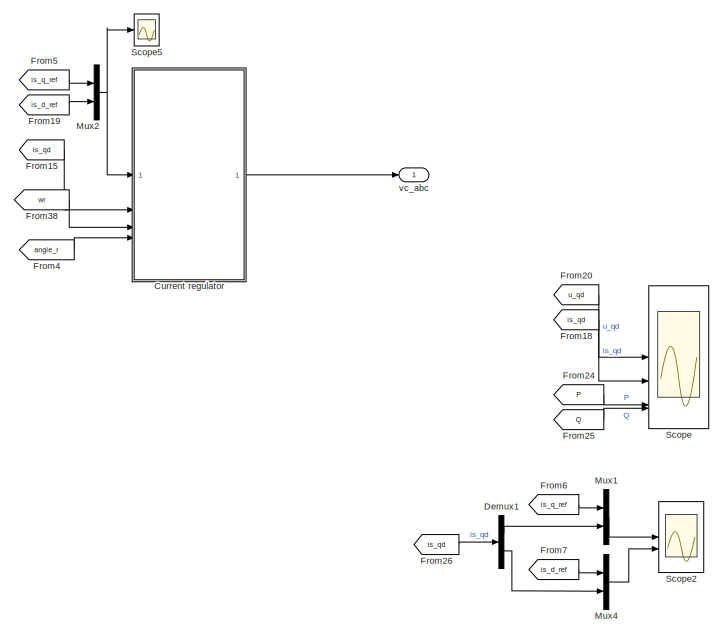
[diagram: VSC control1 - part 1/2, right side, full height]
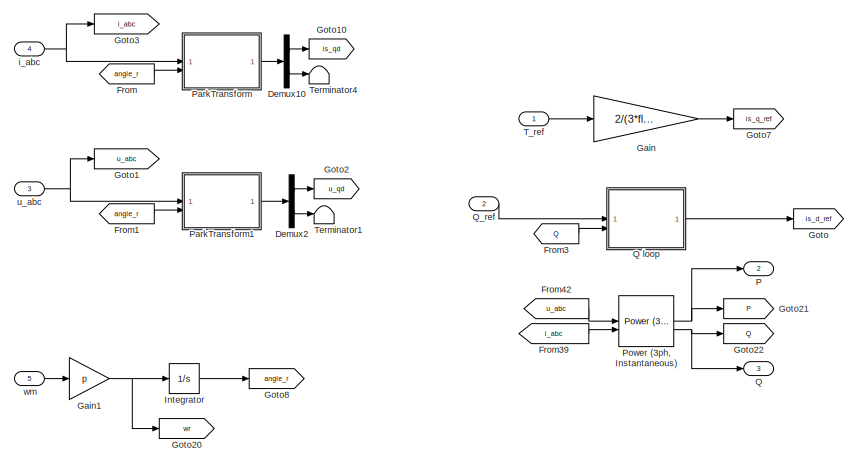
[diagram: VSC control1 - part 2/2, middle left region]
BLOCK [SubSystem] VSC control1
BLOCK [SubSystem] VSC control1/Current regulator
BLOCK [Constant] VSC control1/Current regulator/Constant
  Value = 0
BLOCK [Delay] VSC control1/Current regulator/Delay1
  DelayLength = 1
  InitialCondition = 0
  InputPortMap = u0
  SampleTime = magnitud_delay
BLOCK [Delay] VSC control1/Current regulator/Delay2
  DelayLength = 1
  InitialCondition = Vpeak_n1
  InputPortMap = u0
  SampleTime = magnitud_delay
BLOCK [Demux] VSC control1/Current regulator/Demux
  Outputs = 2
BLOCK [Demux] VSC control1/Current regulator/Demux1
  Outputs = 2
BLOCK [Gain] VSC control1/Current regulator/Gain
  Gain = Lq
BLOCK [Gain] VSC control1/Current regulator/Gain1
  Gain = Ld
BLOCK [Gain] VSC control1/Current regulator/Gain2
  Gain = fluxm
BLOCK [Mux] VSC control1/Current regulator/Mux
  DisplayOption = bar
  Inputs = 3
BLOCK [Reference] VSC control1/Current regulator/PID Controller1  REF=slpidlib/PID Controller
  SourceBlock = slpidlib/PID Controller
  SourceType = PID 1dof
BLOCK [Reference] VSC control1/Current regulator/PID Controller2  REF=slpidlib/PID Controller
  SourceBlock = slpidlib/PID Controller
  SourceType = PID 1dof
BLOCK [SubSystem] VSC control1/Current regulator/ParkInverse
BLOCK [Inport] VSC control1/Current regulator/ParkInverse/ABC vector
BLOCK [Constant] VSC control1/Current regulator/ParkInverse/Constant4
  Value = 2*pi/3
BLOCK [Constant] VSC control1/Current regulator/ParkInverse/Constant5
  Value = 2*pi/3
BLOCK [Constant] VSC control1/Current regulator/ParkInverse/Constant9
BLOCK [Outport] VSC control1/Current regulator/ParkInverse/Matrix
BLOCK [Concatenate] VSC control1/Current regulator/ParkInverse/Matrix Concatenate2
  ConcatenateDimension = 2
  Mode = Multidimensional array
  NumInputs = 3
BLOCK [Mux] VSC control1/Current regulator/ParkInverse/Mux6
  DisplayOption = bar
  Inputs = 3
BLOCK [Mux] VSC control1/Current regulator/ParkInverse/Mux7
  DisplayOption = bar
  Inputs = 3
BLOCK [Product] VSC control1/Current regulator/ParkInverse/Product
  Multiplication = Matrix(*)
  RndMeth = Zero
BLOCK [Sum] VSC control1/Current regulator/ParkInverse/Sum
  Inputs = |+-
BLOCK [Sum] VSC control1/Current regulator/ParkInverse/Sum1
  Inputs = |++
BLOCK [Trigonometry] VSC control1/Current regulator/ParkInverse/Trigonometric Function8
  Operator = cos
BLOCK [Trigonometry] VSC control1/Current regulator/ParkInverse/Trigonometric Function9
BLOCK [Inport] VSC control1/Current regulator/ParkInverse/angle
  Port = 2
BLOCK [Product] VSC control1/Current regulator/Product
  RndMeth = Zero
BLOCK [Product] VSC control1/Current regulator/Product1
  RndMeth = Zero
BLOCK [Sum] VSC control1/Current regulator/Sum1
  Inputs = |+-
BLOCK [Sum] VSC control1/Current regulator/Sum2
  Inputs = +++
BLOCK [Sum] VSC control1/Current regulator/Sum3
  Inputs = -+|
BLOCK [Sum] VSC control1/Current regulator/Sum4
  Inputs = -+|
BLOCK [Inport] VSC control1/Current regulator/angle
  Port = 4
BLOCK [Inport] VSC control1/Current regulator/iqd_fdb
  Port = 2
BLOCK [Inport] VSC control1/Current regulator/iqd_ref
BLOCK [Outport] VSC control1/Current regulator/vc_abc
BLOCK [Inport] VSC control1/Current regulator/wr
  Port = 3
BLOCK [Demux] VSC control1/Demux1
  Outputs = 2
BLOCK [Demux] VSC control1/Demux10
  Outputs = 2
BLOCK [Demux] VSC control1/Demux2
  Outputs = 2
BLOCK [From] VSC control1/From
  GotoTag = angle_r
BLOCK [From] VSC control1/From1
  GotoTag = angle_r
BLOCK [From] VSC control1/From15
  GotoTag = is_qd
BLOCK [From] VSC control1/From18
  GotoTag = is_qd
BLOCK [From] VSC control1/From19
  GotoTag = is_d_ref
BLOCK [From] VSC control1/From20
  GotoTag = u_qd
BLOCK [From] VSC control1/From24
  GotoTag = P
BLOCK [From] VSC control1/From25
  GotoTag = Q
BLOCK [From] VSC control1/From26
  GotoTag = is_qd
BLOCK [From] VSC control1/From3
  GotoTag = Q
BLOCK [From] VSC control1/From38
  GotoTag = wr
BLOCK [From] VSC control1/From39
  GotoTag = i_abc
  NameLocation = top
BLOCK [From] VSC control1/From4
  GotoTag = angle_r
BLOCK [From] VSC control1/From42
  GotoTag = u_abc
BLOCK [From] VSC control1/From5
  GotoTag = is_q_ref
BLOCK [From] VSC control1/From6
  GotoTag = is_q_ref
BLOCK [From] VSC control1/From7
  GotoTag = is_d_ref
BLOCK [Gain] VSC control1/Gain
  Gain = 2/(3*fluxm*p)
BLOCK [Gain] VSC control1/Gain1
  Gain = p
BLOCK [Goto] VSC control1/Goto
  GotoTag = is_d_ref
BLOCK [Goto] VSC control1/Goto1
  GotoTag = u_abc
BLOCK [Goto] VSC control1/Goto10
  GotoTag = is_qd
BLOCK [Goto] VSC control1/Goto2
  GotoTag = u_qd
BLOCK [Goto] VSC control1/Goto20
  GotoTag = wr
BLOCK [Goto] VSC control1/Goto21
  GotoTag = P
BLOCK [Goto] VSC control1/Goto22
  GotoTag = Q
BLOCK [Goto] VSC control1/Goto3
  GotoTag = i_abc
BLOCK [Goto] VSC control1/Goto7
  GotoTag = is_q_ref
BLOCK [Goto] VSC control1/Goto8
  GotoTag = angle_r
BLOCK [Integrator] VSC control1/Integrator
BLOCK [Mux] VSC control1/Mux1
  DisplayOption = bar
  Inputs = 2
BLOCK [Mux] VSC control1/Mux2
  DisplayOption = bar
  Inputs = 2
BLOCK [Mux] VSC control1/Mux4
  DisplayOption = bar
  Inputs = 2
BLOCK [Outport] VSC control1/P
  Port = 2
BLOCK [SubSystem] VSC control1/ParkTransform
BLOCK [Inport] VSC control1/ParkTransform/ABC vector
BLOCK [Constant] VSC control1/ParkTransform/Constant1
  Value = 1/2
BLOCK [Constant] VSC control1/ParkTransform/Constant2
  Value = 1/2
BLOCK [Constant] VSC control1/ParkTransform/Constant3
  Value = 2*pi/3
BLOCK [Constant] VSC control1/ParkTransform/Constant4
  Value = 2*pi/3
BLOCK [Constant] VSC control1/ParkTransform/Constant5
  Value = 1/2
BLOCK [Gain] VSC control1/ParkTransform/Gain
  Gain = 2/3
BLOCK [Outport] VSC control1/ParkTransform/Matrix
BLOCK [Concatenate] VSC control1/ParkTransform/Matrix Concatenate
  ConcatenateDimension = 2
  Mode = Multidimensional array
  NumInputs = 3
BLOCK [Mux] VSC control1/ParkTransform/Mux1
  DisplayOption = bar
  Inputs = 3
BLOCK [Mux] VSC control1/ParkTransform/Mux2
  DisplayOption = bar
  Inputs = 3
BLOCK [Mux] VSC control1/ParkTransform/Mux3
  DisplayOption = bar
  Inputs = 3
BLOCK [Product] VSC control1/ParkTransform/Product
  Multiplication = Matrix(*)
  RndMeth = Zero
BLOCK [Sum] VSC control1/ParkTransform/Sum
  Inputs = |+-
BLOCK [Sum] VSC control1/ParkTransform/Sum1
  Inputs = |++
BLOCK [Trigonometry] VSC control1/ParkTransform/Trigonometric Function1
  Operator = cos
BLOCK [Trigonometry] VSC control1/ParkTransform/Trigonometric Function2
  Operator = cos
BLOCK [Trigonometry] VSC control1/ParkTransform/Trigonometric Function3
BLOCK [Trigonometry] VSC control1/ParkTransform/Trigonometric Function4
BLOCK [Trigonometry] VSC control1/ParkTransform/Trigonometric Function5
  Operator = cos
BLOCK [Trigonometry] VSC control1/ParkTransform/Trigonometric Function6
BLOCK [Inport] VSC control1/ParkTransform/angle
  Port = 2
BLOCK [SubSystem] VSC control1/ParkTransform1
BLOCK [Inport] VSC control1/ParkTransform1/ABC vector
BLOCK [Constant] VSC control1/ParkTransform1/Constant1
  Value = 1/2
BLOCK [Constant] VSC control1/ParkTransform1/Constant2
  Value = 1/2
BLOCK [Constant] VSC control1/ParkTransform1/Constant3
  Value = 2*pi/3
BLOCK [Constant] VSC control1/ParkTransform1/Constant4
  Value = 2*pi/3
BLOCK [Constant] VSC control1/ParkTransform1/Constant5
  Value = 1/2
BLOCK [Gain] VSC control1/ParkTransform1/Gain
  Gain = 2/3
BLOCK [Outport] VSC control1/ParkTransform1/Matrix
BLOCK [Concatenate] VSC control1/ParkTransform1/Matrix Concatenate
  ConcatenateDimension = 2
  Mode = Multidimensional array
  NumInputs = 3
BLOCK [Mux] VSC control1/ParkTransform1/Mux1
  DisplayOption = bar
  Inputs = 3
BLOCK [Mux] VSC control1/ParkTransform1/Mux2
  DisplayOption = bar
  Inputs = 3
BLOCK [Mux] VSC control1/ParkTransform1/Mux3
  DisplayOption = bar
  Inputs = 3
BLOCK [Product] VSC control1/ParkTransform1/Product
  Multiplication = Matrix(*)
  RndMeth = Zero
BLOCK [Sum] VSC control1/ParkTransform1/Sum
  Inputs = |+-
BLOCK [Sum] VSC control1/ParkTransform1/Sum1
  Inputs = |++
BLOCK [Trigonometry] VSC control1/ParkTransform1/Trigonometric Function1
  Operator = cos
BLOCK [Trigonometry] VSC control1/ParkTransform1/Trigonometric Function2
  Operator = cos
BLOCK [Trigonometry] VSC control1/ParkTransform1/Trigonometric Function3
BLOCK [Trigonometry] VSC control1/ParkTransform1/Trigonometric Function4
BLOCK [Trigonometry] VSC control1/ParkTransform1/Trigonometric Function5
  Operator = cos
BLOCK [Trigonometry] VSC control1/ParkTransform1/Trigonometric Function6
BLOCK [Inport] VSC control1/ParkTransform1/angle
  Port = 2
BLOCK [Reference] VSC control1/Power (3ph, Instantaneous)  REF=spsPower3phInstantaneousLib/Power
(3ph, Instantaneous)
  LibrarySourceBlock = sps_lib/Sensors and Measurements/Power\n(3ph, Instantaneous)
  SourceBlock = spsPower3phInstantaneousLib/Power\n(3ph, Instantaneous)
  SourceType = Power (3ph, Instantaneous)
BLOCK [Outport] VSC control1/Q
  Port = 3
BLOCK [SubSystem] VSC control1/Q loop
BLOCK [Gain] VSC control1/Q loop/Gain2
  Gain = 2/(3*Vpeak_n1)
BLOCK [Reference] VSC control1/Q loop/PID Controller  REF=slpidlib/PID Controller
  SourceBlock = slpidlib/PID Controller
  SourceType = PID 1dof
BLOCK [Inport] VSC control1/Q loop/Q
  Port = 2
BLOCK [Inport] VSC control1/Q loop/Q_ref
BLOCK [Scope] VSC control1/Q loop/Scope3
  Floating = off
  NumInputPorts = 1
  ScopeSpecificationString = Simulink.scopes.TimeScopeBlockCfg('CurrentConfiguration', extmgr.ConfigurationSet(extmgr.Configuration('Core','General UI',true),extmgr.Configuration('Core','Source UI',true),extmgr.Configuration('Sources','WiredSimulink',true,'DataLoggingVariableName','ScopeData7','DataLoggingSaveFormat','Array','DataLoggingDecimation','1','DataLoggingDecimateData',true),extmgr.Configuration('Visuals','Time Domai...<+1547ch>
BLOCK [Sum] VSC control1/Q loop/Sum1
  Inputs = |+-
BLOCK [Outport] VSC control1/Q loop/is_d_ref
BLOCK [Inport] VSC control1/Q_ref
  Port = 2
BLOCK [Scope] VSC control1/Scope
  Floating = off
  NumInputPorts = 6
  ScopeSpecificationString = Simulink.scopes.TimeScopeBlockCfg('CurrentConfiguration', extmgr.ConfigurationSet(extmgr.Configuration('Core','General UI',true),extmgr.Configuration('Core','Source UI',true),extmgr.Configuration('Sources','WiredSimulink',true,'DataLoggingVariableName','ScopeData3'),extmgr.Configuration('Visuals','Time Domain',true,'SerializedDisplays',{struct('MinYLimReal','-98.31592','MaxYLimReal','884.08077','Y...<+4929ch>
BLOCK [Scope] VSC control1/Scope2
  Floating = off
  NumInputPorts = 2
  ScopeSpecificationString = Simulink.scopes.TimeScopeBlockCfg('CurrentConfiguration', extmgr.ConfigurationSet(extmgr.Configuration('Core','General UI',true),extmgr.Configuration('Core','Source UI',true),extmgr.Configuration('Sources','WiredSimulink',true,'DataLoggingVariableName','ScopeData4'),extmgr.Configuration('Visuals','Time Domain',true,'SerializedDisplays',{struct('MinYLimReal','-3000.22042','MaxYLimReal','335.04682',...<+2043ch>
BLOCK [Scope] VSC control1/Scope5
  Floating = off
  NumInputPorts = 1
  ScopeSpecificationString = Simulink.scopes.TimeScopeBlockCfg('CurrentConfiguration', extmgr.ConfigurationSet(extmgr.Configuration('Core','General UI',true),extmgr.Configuration('Core','Source UI',true),extmgr.Configuration('Sources','WiredSimulink',true,'DataLoggingVariableName','ScopeData8','DataLoggingSaveFormat','Array','DataLoggingDecimation','1','DataLoggingDecimateData',true),extmgr.Configuration('Visuals','Time Domai...<+1558ch>
BLOCK [Inport] VSC control1/T_ref
BLOCK [Terminator] VSC control1/Terminator1
BLOCK [Terminator] VSC control1/Terminator4
BLOCK [Inport] VSC control1/i_abc
  Port = 4
BLOCK [Inport] VSC control1/u_abc
  Port = 3
BLOCK [Outport] VSC control1/vc_abc
BLOCK [Inport] VSC control1/wm
  Port = 5
BLOCK [Reference] Voltage Measurement7  REF=spsVoltageMeasurementLib/Voltage Measurement
  LibrarySourceBlock = sps_lib/Sensors and Measurements/Voltage Measurement
  SourceBlock = spsVoltageMeasurementLib/Voltage Measurement
  SourceType = Voltage Measurement
  UserDataPersistent = on
BLOCK [Step] Vw
  After = 8
  Before = 5
  SampleTime = 0
  Time = 0.5
BLOCK [SubSystem] Wind Turbine Power
BLOCK [SubSystem] Wind Turbine Power/Cp
BLOCK [Sum] Wind Turbine Power/Cp/Add
  IconShape = rectangular
  Inputs = +---
BLOCK [Constant] Wind Turbine Power/Cp/Constant1
  Value = c6
BLOCK [Constant] Wind Turbine Power/Cp/Constant3
  Value = c5
BLOCK [Outport] Wind Turbine Power/Cp/Cp
BLOCK [Gain] Wind Turbine Power/Cp/Gain
  Gain = c3
BLOCK [Gain] Wind Turbine Power/Cp/Gain1
  Gain = c4
BLOCK [Gain] Wind Turbine Power/Cp/Gain2
  Gain = c2
BLOCK [Gain] Wind Turbine Power/Cp/Gain3
  Gain = c1
BLOCK [Gain] Wind Turbine Power/Cp/Gain4
  Gain = -c7
BLOCK [Inport] Wind Turbine Power/Cp/In1
BLOCK [Math] Wind Turbine Power/Cp/Math Function
BLOCK [Math] Wind Turbine Power/Cp/Math Function2
  Operator = pow
BLOCK [Product] Wind Turbine Power/Cp/Product2
BLOCK [Inport] Wind Turbine Power/Cp/pitch angle
  Port = 2
BLOCK [Product] Wind Turbine Power/Divide
  Inputs = /*
BLOCK [Gain] Wind Turbine Power/Gain
  Gain = 1/2*A*rho
BLOCK [Gain] Wind Turbine Power/Gain1
  Gain = Rt
BLOCK [Goto] Wind Turbine Power/Goto
  GotoTag = Cp
  TagVisibility = global
BLOCK [Product] Wind Turbine Power/Product
  Inputs = 3
BLOCK [Product] Wind Turbine Power/Product1
BLOCK [Outport] Wind Turbine Power/Pwt
BLOCK [SubSystem] Wind Turbine Power/alfa
BLOCK [Sum] Wind Turbine Power/alfa/Add1
  IconShape = rectangular
BLOCK [Sum] Wind Turbine Power/alfa/Add2
  IconShape = rectangular
BLOCK [Sum] Wind Turbine Power/alfa/Add3
  IconShape = rectangular
  Inputs = +-
BLOCK [Constant] Wind Turbine Power/alfa/Constant
BLOCK [Constant] Wind Turbine Power/alfa/Constant1
  Value = c9
BLOCK [Product] Wind Turbine Power/alfa/Divide
  Inputs = */
BLOCK [Gain] Wind Turbine Power/alfa/Gain
  Gain = c8
BLOCK [Math] Wind Turbine Power/alfa/Math Function
  Operator = reciprocal
BLOCK [Outport] Wind Turbine Power/alfa/Out1
BLOCK [Product] Wind Turbine Power/alfa/Product
  Inputs = 3
BLOCK [Inport] Wind Turbine Power/alfa/pitch angle
  Port = 2
BLOCK [Inport] Wind Turbine Power/alfa/tip speed
BLOCK [Inport] Wind Turbine Power/pitch angle
  Port = 3
BLOCK [Inport] Wind Turbine Power/wind speed
BLOCK [Inport] Wind Turbine Power/wt
  Port = 2
BLOCK [Reference] powergui  REF=sps_lib/powergui
  Priority = 1
  SourceBlock = sps_lib/powergui
  SourceType = PSB option menu block
ANNOTATION (root): Grid Thevenin
ANNOTATION (root): PMSG
NET Bus Selector:1 -> Goto13:1, Product1:1, Scope2:2
NET Bus Selector:2 -> Goto12:1, Product1:2, Scope2:3
NET Clock:1 -> Display:1, To Workspace2:1
LINE Constant2:1 -> Goto18:1
LINE Constant:1 -> Wind Turbine Power:3
LINE Current Measurement9:1 -> Goto19:1
LINE Divide1:1 -> One-mass model transmission:1
NET From10:1 -> Display3:1, Scope5:1, Scope6:2
LINE From11:1 -> Mux8:1
NET From12:1 -> Display1:1, Scope:1
LINE From13:1 -> VSC control:4
LINE From14:1 -> Divide1:2
LINE From15:1 -> Wind Turbine Power:2
LINE From18:1 -> Permanent Magnet Synchronous Machine:1
LINE From19:1 -> VSC control1:1
LINE From1:1 -> VSC 1:1
LINE From20:1 -> Mux5:1
LINE From21:1 -> Gain:1
LINE From27:1 -> Mux5:2
LINE From28:1 -> Mux6:1
NET From29:1 -> Mux6:2, Scope7:2
LINE From2:1 -> VSC control1:4
NET From31:1 -> Mux8:2, Scope5:2
LINE From33:1 -> VSC control:5
LINE From34:1 -> Mux7:2
LINE From35:1 -> VSC control:1
LINE From36:1 -> Mux7:1
LINE From37:1 -> VSC control:6
LINE From3:1 -> VSC control1:5
LINE From41:1 -> VSC control:2
LINE From43:1 -> VSC 2:3
LINE From44:1 -> VSC 2:1
LINE From45:1 -> Scope3:1
NET From46:1 -> Display2:1, Scope3:2
LINE From47:1 -> VSC 2:2
LINE From4:1 -> VSC control:3
LINE From5:1 -> Mux1:2
NET From6:1 -> Mux1:1, Scope7:1
LINE From7:1 -> VSC control1:3
LINE From8:1 -> VSC control1:2
LINE From9:1 -> VSC 1:2
LINE From:1 -> VSC 1:3
LINE Gain1:1 -> Goto8:1
LINE Gain:1 -> One-mass model transmission:2
LINE Grid/Constant1:1 -> Grid/Gain1:1
LINE Grid/Constant20:1 -> Grid/Sum9:2
LINE Grid/Constant21:1 -> Grid/Sum7:2
LINE Grid/Constant22:1 -> Grid/Sum8:2
NET Grid/Gain1:1 -> Grid/Integrator10:1, Grid/Integrator8:1, Grid/Integrator9:1
LINE Grid/Gain2:1 -> Grid/vzb:1
LINE Grid/Gain3:1 -> Grid/vzc:1
LINE Grid/Gain4:1 -> Grid/vza:1
LINE Grid/Integrator10:1 -> Grid/Sum8:1
LINE Grid/Integrator8:1 -> Grid/Sum9:1
LINE Grid/Integrator9:1 -> Grid/Sum7:1
LINE Grid/Sum7:1 -> Grid/Trigonometric Function7:1
LINE Grid/Sum8:1 -> Grid/Trigonometric Function8:1
NET Grid/Sum9:1 -> Grid/Trigonometric Function6:1, Grid/thetareal:1
LINE Grid/Trigonometric Function6:1 -> Grid/Gain4:1
LINE Grid/Trigonometric Function7:1 -> Grid/Gain2:1
LINE Grid/Trigonometric Function8:1 -> Grid/Gain3:1
LINE Grid:1 -> Controlled Voltage Source3:1
LINE Grid:2 -> Controlled Voltage Source4:1
LINE Grid:3 -> Controlled Voltage Source5:1
LINE Grid:4 -> Scope4:1
LINE MMPT/Gain6:1 -> MMPT/Te:1
LINE MMPT/Product:1 -> MMPT/Gain6:1
NET MMPT/wt:1 -> MMPT/Product:1, MMPT/Product:2
LINE MMPT:1 -> Gain1:1
LINE Mux1:1 -> Scope1:3
LINE Mux5:1 -> Scope1:1
LINE Mux6:1 -> Scope1:2
LINE Mux7:1 -> Scope6:1
LINE Mux8:1 -> Scope6:3
LINE One-mass model transmission/Gain2:1 -> One-mass model transmission/Sum:2
LINE One-mass model transmission/Gain3:1 -> One-mass model transmission/Integrator:1
LINE One-mass model transmission/Gain4:1 -> One-mass model transmission/wg:1
NET One-mass model transmission/Integrator:1 -> One-mass model transmission/Gain4:1, One-mass model transmission/wt:1
LINE One-mass model transmission/Sum:1 -> One-mass model transmission/Gain3:1
LINE One-mass model transmission/Te:1 -> One-mass model transmission/Gain2:1
LINE One-mass model transmission/Tt:1 -> One-mass model transmission/Sum:1
NET One-mass model transmission:1 -> Goto5:1, MMPT:1
LINE One-mass model transmission:2 -> Goto7:1
LINE Permanent Magnet Synchronous Machine:1 -> Bus Selector:1
NET Product1:1 -> Goto1:1, Scope2:1
LINE Step1:1 -> Goto14:1
LINE Step4:1 -> Goto9:1
LINE VSC 1/Current Measurement9:1 -> VSC 1/idc:1
LINE VSC 1/Demux:1 -> VSC 1/Controlled Voltage Source1:1
LINE VSC 1/Demux:2 -> VSC 1/Controlled Voltage Source2:1
LINE VSC 1/Demux:3 -> VSC 1/Controlled Voltage Source3:1
LINE VSC 1/Divide:1 -> VSC 1/Controlled Current Source5:1
LINE VSC 1/Product1:1 -> VSC 1/Sum4:1
LINE VSC 1/Sum4:1 -> VSC 1/Divide:1
LINE VSC 1/Vbus:1 -> VSC 1/Divide:2
LINE VSC 1/i_abc:1 -> VSC 1/Product1:2
NET VSC 1/vc_abc:1 -> VSC 1/Demux:1, VSC 1/Product1:1
LINE VSC 2/Current Measurement9:1 -> VSC 2/idc:1
LINE VSC 2/Demux:1 -> VSC 2/Controlled Voltage Source1:1
LINE VSC 2/Demux:2 -> VSC 2/Controlled Voltage Source2:1
LINE VSC 2/Demux:3 -> VSC 2/Controlled Voltage Source3:1
NET VSC 2/Divide:1 -> VSC 2/Controlled Current Source5:1, VSC 2/Scope1:1
LINE VSC 2/Product1:1 -> VSC 2/Sum4:1
NET VSC 2/Sum4:1 -> VSC 2/Divide:1, VSC 2/Scope5:1
LINE VSC 2/Vbus:1 -> VSC 2/Divide:2
LINE VSC 2/i_abc:1 -> VSC 2/Product1:2
NET VSC 2/vc_abc:1 -> VSC 2/Demux:1, VSC 2/Product1:1
LINE VSC control/Current regulator/Constant:1 -> VSC control/Current regulator/Mux:3
LINE VSC control/Current regulator/Delay1:1 -> VSC control/Current regulator/Mux:2
LINE VSC control/Current regulator/Delay2:1 -> VSC control/Current regulator/Mux:1
LINE VSC control/Current regulator/Demux1:1 -> VSC control/Current regulator/Sum1:1
LINE VSC control/Current regulator/Demux1:2 -> VSC control/Current regulator/Sum3:2
LINE VSC control/Current regulator/Demux2:1 -> VSC control/Current regulator/Goto2:1
LINE VSC control/Current regulator/Demux2:2 -> VSC control/Current regulator/Goto3:1
NET VSC control/Current regulator/Demux:1 -> VSC control/Current regulator/Product:1, VSC control/Current regulator/Sum1:2
NET VSC control/Current regulator/Demux:2 -> VSC control/Current regulator/Product1:2, VSC control/Current regulator/Sum3:1
LINE VSC control/Current regulator/From2:1 -> VSC control/Current regulator/Sum2:1
LINE VSC control/Current regulator/From3:1 -> VSC control/Current regulator/Sum4:3
NET VSC control/Current regulator/Gain:1 -> VSC control/Current regulator/Product1:1, VSC control/Current regulator/Product:2
LINE VSC control/Current regulator/Mux:1 -> VSC control/Current regulator/ParkInverse:1
LINE VSC control/Current regulator/PID Controller1:1 -> VSC control/Current regulator/Sum2:2
LINE VSC control/Current regulator/PID Controller2:1 -> VSC control/Current regulator/Sum4:2
LINE VSC control/Current regulator/ParkInverse/ABC vector:1 -> VSC control/Current regulator/ParkInverse/Product:2
LINE VSC control/Current regulator/ParkInverse/Constant4:1 -> VSC control/Current regulator/ParkInverse/Sum:2
LINE VSC control/Current regulator/ParkInverse/Constant5:1 -> VSC control/Current regulator/ParkInverse/Sum1:2
NET VSC control/Current regulator/ParkInverse/Constant9:1 -> VSC control/Current regulator/ParkInverse/Mux7:1, VSC control/Current regulator/ParkInverse/Mux7:2, VSC control/Current regulator/ParkInverse/Mux7:3
LINE VSC control/Current regulator/ParkInverse/Matrix Concatenate2:1 -> VSC control/Current regulator/ParkInverse/Product:1
NET VSC control/Current regulator/ParkInverse/Mux6:1 -> VSC control/Current regulator/ParkInverse/Trigonometric Function8:1, VSC control/Current regulator/ParkInverse/Trigonometric Function9:1
LINE VSC control/Current regulator/ParkInverse/Mux7:1 -> VSC control/Current regulator/ParkInverse/Matrix Concatenate2:3
LINE VSC control/Current regulator/ParkInverse/Product:1 -> VSC control/Current regulator/ParkInverse/Matrix:1
LINE VSC control/Current regulator/ParkInverse/Sum1:1 -> VSC control/Current regulator/ParkInverse/Mux6:3
LINE VSC control/Current regulator/ParkInverse/Sum:1 -> VSC control/Current regulator/ParkInverse/Mux6:2
LINE VSC control/Current regulator/ParkInverse/Trigonometric Function8:1 -> VSC control/Current regulator/ParkInverse/Matrix Concatenate2:1
LINE VSC control/Current regulator/ParkInverse/Trigonometric Function9:1 -> VSC control/Current regulator/ParkInverse/Matrix Concatenate2:2
NET VSC control/Current regulator/ParkInverse/angle:1 -> VSC control/Current regulator/ParkInverse/Mux6:1, VSC control/Current regulator/ParkInverse/Sum1:1, VSC control/Current regulator/ParkInverse/Sum:1
LINE VSC control/Current regulator/ParkInverse:1 -> VSC control/Current regulator/vc_abc:1
LINE VSC control/Current regulator/Product1:1 -> VSC control/Current regulator/Sum2:3
LINE VSC control/Current regulator/Product:1 -> VSC control/Current regulator/Sum4:1
LINE VSC control/Current regulator/Sum1:1 -> VSC control/Current regulator/PID Controller1:1
LINE VSC control/Current regulator/Sum2:1 -> VSC control/Current regulator/Delay2:1
LINE VSC control/Current regulator/Sum3:1 -> VSC control/Current regulator/PID Controller2:1
LINE VSC control/Current regulator/Sum4:1 -> VSC control/Current regulator/Delay1:1
LINE VSC control/Current regulator/angle:1 -> VSC control/Current regulator/ParkInverse:2
LINE VSC control/Current regulator/iqd_fdb:1 -> VSC control/Current regulator/Demux:1
LINE VSC control/Current regulator/iqd_ref:1 -> VSC control/Current regulator/Demux1:1
LINE VSC control/Current regulator/u_ffw:1 -> VSC control/Current regulator/Demux2:1
LINE VSC control/Current regulator/w_grid:1 -> VSC control/Current regulator/Gain:1
LINE VSC control/Current regulator:1 -> VSC control/vc_abc:1
LINE VSC control/Demux10:1 -> VSC control/Goto10:1
LINE VSC control/Demux10:2 -> VSC control/Terminator4:1
LINE VSC control/Demux1:1 -> VSC control/Mux1:2
LINE VSC control/Demux1:2 -> VSC control/Mux4:2
LINE VSC control/Divide1:1 -> VSC control/Scope:4
LINE VSC control/From12:1 -> VSC control/Current regulator:5
LINE VSC control/From14:1 -> VSC control/ParkTransform:2
LINE VSC control/From15:1 -> VSC control/Current regulator:2
LINE VSC control/From18:1 -> VSC control/Scope:2
LINE VSC control/From19:1 -> VSC control/Mux2:2
LINE VSC control/From20:1 -> VSC control/Scope:1
LINE VSC control/From22:1 -> VSC control/Divide1:1
LINE VSC control/From23:1 -> VSC control/Divide1:2
LINE VSC control/From24:1 -> VSC control/Scope:5
LINE VSC control/From25:1 -> VSC control/Scope:6
LINE VSC control/From26:1 -> VSC control/Demux1:1
LINE VSC control/From38:1 -> VSC control/Current regulator:4
LINE VSC control/From39:1 -> VSC control/Power (3ph, Instantaneous):2
LINE VSC control/From3:1 -> VSC control/Q loop:2
LINE VSC control/From42:1 -> VSC control/Power (3ph, Instantaneous):1
LINE VSC control/From5:1 -> VSC control/Mux2:1
LINE VSC control/From6:1 -> VSC control/Mux1:1
LINE VSC control/From7:1 -> VSC control/Mux4:1
LINE VSC control/From8:1 -> VSC control/Current regulator:3
LINE VSC control/Mux1:1 -> VSC control/Scope2:1
NET VSC control/Mux2:1 -> VSC control/Current regulator:1, VSC control/Scope5:1
LINE VSC control/Mux3:1 -> VSC control/Goto2:1
LINE VSC control/Mux4:1 -> VSC control/Scope2:2
LINE VSC control/PLL/Constant3:1 -> VSC control/PLL/Sum1:2
LINE VSC control/PLL/Constant:1 -> VSC control/PLL/Sum:1
LINE VSC control/PLL/Demux:1 -> VSC control/PLL/Vzq:1
NET VSC control/PLL/Demux:2 -> VSC control/PLL/Sum:2, VSC control/PLL/Vzd:1
LINE VSC control/PLL/Demux:3 -> VSC control/PLL/Terminator8:1
NET VSC control/PLL/Integrator:1 -> VSC control/PLL/ParkTransform:2, VSC control/PLL/Scope2:1, VSC control/PLL/angle:1
LINE VSC control/PLL/PID Controller:1 -> VSC control/PLL/Sum1:1
LINE VSC control/PLL/ParkTransform/ABC vector:1 -> VSC control/PLL/ParkTransform/Product:2
LINE VSC control/PLL/ParkTransform/Constant1:1 -> VSC control/PLL/ParkTransform/Mux2:3
LINE VSC control/PLL/ParkTransform/Constant2:1 -> VSC control/PLL/ParkTransform/Mux1:3
LINE VSC control/PLL/ParkTransform/Constant3:1 -> VSC control/PLL/ParkTransform/Sum1:2
LINE VSC control/PLL/ParkTransform/Constant4:1 -> VSC control/PLL/ParkTransform/Sum:2
LINE VSC control/PLL/ParkTransform/Constant5:1 -> VSC control/PLL/ParkTransform/Mux3:3
LINE VSC control/PLL/ParkTransform/Gain:1 -> VSC control/PLL/ParkTransform/Product:1
LINE VSC control/PLL/ParkTransform/Matrix Concatenate:1 -> VSC control/PLL/ParkTransform/Gain:1
LINE VSC control/PLL/ParkTransform/Mux1:1 -> VSC control/PLL/ParkTransform/Matrix Concatenate:2
LINE VSC control/PLL/ParkTransform/Mux2:1 -> VSC control/PLL/ParkTransform/Matrix Concatenate:1
LINE VSC control/PLL/ParkTransform/Mux3:1 -> VSC control/PLL/ParkTransform/Matrix Concatenate:3
LINE VSC control/PLL/ParkTransform/Product:1 -> VSC control/PLL/ParkTransform/Matrix:1
NET VSC control/PLL/ParkTransform/Sum1:1 -> VSC control/PLL/ParkTransform/Trigonometric Function5:1, VSC control/PLL/ParkTransform/Trigonometric Function6:1
NET VSC control/PLL/ParkTransform/Sum:1 -> VSC control/PLL/ParkTransform/Trigonometric Function2:1, VSC control/PLL/ParkTransform/Trigonometric Function3:1
LINE VSC control/PLL/ParkTransform/Trigonometric Function1:1 -> VSC control/PLL/ParkTransform/Mux2:1
LINE VSC control/PLL/ParkTransform/Trigonometric Function2:1 -> VSC control/PLL/ParkTransform/Mux1:1
LINE VSC control/PLL/ParkTransform/Trigonometric Function3:1 -> VSC control/PLL/ParkTransform/Mux1:2
LINE VSC control/PLL/ParkTransform/Trigonometric Function4:1 -> VSC control/PLL/ParkTransform/Mux2:2
LINE VSC control/PLL/ParkTransform/Trigonometric Function5:1 -> VSC control/PLL/ParkTransform/Mux3:1
LINE VSC control/PLL/ParkTransform/Trigonometric Function6:1 -> VSC control/PLL/ParkTransform/Mux3:2
NET VSC control/PLL/ParkTransform/angle:1 -> VSC control/PLL/ParkTransform/Sum1:1, VSC control/PLL/ParkTransform/Sum:1, VSC control/PLL/ParkTransform/Trigonometric Function1:1, VSC control/PLL/ParkTransform/Trigonometric Function4:1
LINE VSC control/PLL/ParkTransform:1 -> VSC control/PLL/Demux:1
NET VSC control/PLL/Sum1:1 -> VSC control/PLL/Integrator:1, VSC control/PLL/Scope1:1, VSC control/PLL/w_grid:1
NET VSC control/PLL/Sum:1 -> VSC control/PLL/PID Controller:1, VSC control/PLL/Scope20:1
LINE VSC control/PLL/u_abc:1 -> VSC control/PLL/ParkTransform:1
LINE VSC control/PLL:1 -> VSC control/Mux3:1
LINE VSC control/PLL:2 -> VSC control/Mux3:2
LINE VSC control/PLL:3 -> VSC control/Goto8:1
LINE VSC control/PLL:4 -> VSC control/Goto20:1
LINE VSC control/ParkTransform/ABC vector:1 -> VSC control/ParkTransform/Product:2
LINE VSC control/ParkTransform/Constant1:1 -> VSC control/ParkTransform/Mux2:3
LINE VSC control/ParkTransform/Constant2:1 -> VSC control/ParkTransform/Mux1:3
LINE VSC control/ParkTransform/Constant3:1 -> VSC control/ParkTransform/Sum1:2
LINE VSC control/ParkTransform/Constant4:1 -> VSC control/ParkTransform/Sum:2
LINE VSC control/ParkTransform/Constant5:1 -> VSC control/ParkTransform/Mux3:3
LINE VSC control/ParkTransform/Gain:1 -> VSC control/ParkTransform/Product:1
LINE VSC control/ParkTransform/Matrix Concatenate:1 -> VSC control/ParkTransform/Gain:1
LINE VSC control/ParkTransform/Mux1:1 -> VSC control/ParkTransform/Matrix Concatenate:2
LINE VSC control/ParkTransform/Mux2:1 -> VSC control/ParkTransform/Matrix Concatenate:1
LINE VSC control/ParkTransform/Mux3:1 -> VSC control/ParkTransform/Matrix Concatenate:3
LINE VSC control/ParkTransform/Product:1 -> VSC control/ParkTransform/Matrix:1
NET VSC control/ParkTransform/Sum1:1 -> VSC control/ParkTransform/Trigonometric Function5:1, VSC control/ParkTransform/Trigonometric Function6:1
NET VSC control/ParkTransform/Sum:1 -> VSC control/ParkTransform/Trigonometric Function2:1, VSC control/ParkTransform/Trigonometric Function3:1
LINE VSC control/ParkTransform/Trigonometric Function1:1 -> VSC control/ParkTransform/Mux2:1
LINE VSC control/ParkTransform/Trigonometric Function2:1 -> VSC control/ParkTransform/Mux1:1
LINE VSC control/ParkTransform/Trigonometric Function3:1 -> VSC control/ParkTransform/Mux1:2
LINE VSC control/ParkTransform/Trigonometric Function4:1 -> VSC control/ParkTransform/Mux2:2
LINE VSC control/ParkTransform/Trigonometric Function5:1 -> VSC control/ParkTransform/Mux3:1
LINE VSC control/ParkTransform/Trigonometric Function6:1 -> VSC control/ParkTransform/Mux3:2
NET VSC control/ParkTransform/angle:1 -> VSC control/ParkTransform/Sum1:1, VSC control/ParkTransform/Sum:1, VSC control/ParkTransform/Trigonometric Function1:1, VSC control/ParkTransform/Trigonometric Function4:1
LINE VSC control/ParkTransform:1 -> VSC control/Demux10:1
NET VSC control/Power (3ph, Instantaneous):1 -> VSC control/Goto21:1, VSC control/P:1
NET VSC control/Power (3ph, Instantaneous):2 -> VSC control/Goto22:1, VSC control/Q:1
LINE VSC control/Q loop/Gain2:1 -> VSC control/Q loop/is_d_ref:1
LINE VSC control/Q loop/PID Controller:1 -> VSC control/Q loop/Gain2:1
LINE VSC control/Q loop/Q:1 -> VSC control/Q loop/Sum1:2
LINE VSC control/Q loop/Q_ref:1 -> VSC control/Q loop/Sum1:1
NET VSC control/Q loop/Sum1:1 -> VSC control/Q loop/PID Controller:1, VSC control/Q loop/Scope3:1
LINE VSC control/Q loop:1 -> VSC control/Goto:1
LINE VSC control/Q_ref:1 -> VSC control/Q loop:1
LINE VSC control/Vdc loop/Gain1:1 -> VSC control/Vdc loop/Gain2:1
LINE VSC control/Vdc loop/Gain2:1 -> VSC control/Vdc loop/is_q_ref:1
LINE VSC control/Vdc loop/Gain3:1 -> VSC control/Vdc loop/Sum2:2
LINE VSC control/Vdc loop/Idc:1 -> VSC control/Vdc loop/Gain3:1
LINE VSC control/Vdc loop/PID Controller:1 -> VSC control/Vdc loop/Sum2:1
NET VSC control/Vdc loop/Sum1:1 -> VSC control/Vdc loop/PID Controller:1, VSC control/Vdc loop/Scope3:1
LINE VSC control/Vdc loop/Sum2:1 -> VSC control/Vdc loop/Gain1:1
LINE VSC control/Vdc loop/Vdc:1 -> VSC control/Vdc loop/Sum1:2
LINE VSC control/Vdc loop/Vdc_ref:1 -> VSC control/Vdc loop/Sum1:1
LINE VSC control/Vdc loop:1 -> VSC control/Goto17:1
LINE VSC control/Vdc:1 -> VSC control/Vdc loop:2
LINE VSC control/Vdc_ref:1 -> VSC control/Vdc loop:1
NET VSC control/i_abc:1 -> VSC control/Goto3:1, VSC control/ParkTransform:1
LINE VSC control/idc_m:1 -> VSC control/Vdc loop:3
NET VSC control/u_abc:1 -> VSC control/Goto1:1, VSC control/PLL:1
LINE VSC control1/Current regulator/Constant:1 -> VSC control1/Current regulator/Mux:3
LINE VSC control1/Current regulator/Delay1:1 -> VSC control1/Current regulator/Mux:2
LINE VSC control1/Current regulator/Delay2:1 -> VSC control1/Current regulator/Mux:1
LINE VSC control1/Current regulator/Demux1:1 -> VSC control1/Current regulator/Sum1:1
LINE VSC control1/Current regulator/Demux1:2 -> VSC control1/Current regulator/Sum3:2
NET VSC control1/Current regulator/Demux:1 -> VSC control1/Current regulator/Product:1, VSC control1/Current regulator/Sum1:2
NET VSC control1/Current regulator/Demux:2 -> VSC control1/Current regulator/Product1:2, VSC control1/Current regulator/Sum3:1
LINE VSC control1/Current regulator/Gain1:1 -> VSC control1/Current regulator/Product1:1
LINE VSC control1/Current regulator/Gain2:1 -> VSC control1/Current regulator/Sum2:1
LINE VSC control1/Current regulator/Gain:1 -> VSC control1/Current regulator/Product:2
LINE VSC control1/Current regulator/Mux:1 -> VSC control1/Current regulator/ParkInverse:1
LINE VSC control1/Current regulator/PID Controller1:1 -> VSC control1/Current regulator/Sum2:2
LINE VSC control1/Current regulator/PID Controller2:1 -> VSC control1/Current regulator/Sum4:2
LINE VSC control1/Current regulator/ParkInverse/ABC vector:1 -> VSC control1/Current regulator/ParkInverse/Product:2
LINE VSC control1/Current regulator/ParkInverse/Constant4:1 -> VSC control1/Current regulator/ParkInverse/Sum:2
LINE VSC control1/Current regulator/ParkInverse/Constant5:1 -> VSC control1/Current regulator/ParkInverse/Sum1:2
NET VSC control1/Current regulator/ParkInverse/Constant9:1 -> VSC control1/Current regulator/ParkInverse/Mux7:1, VSC control1/Current regulator/ParkInverse/Mux7:2, VSC control1/Current regulator/ParkInverse/Mux7:3
LINE VSC control1/Current regulator/ParkInverse/Matrix Concatenate2:1 -> VSC control1/Current regulator/ParkInverse/Product:1
NET VSC control1/Current regulator/ParkInverse/Mux6:1 -> VSC control1/Current regulator/ParkInverse/Trigonometric Function8:1, VSC control1/Current regulator/ParkInverse/Trigonometric Function9:1
LINE VSC control1/Current regulator/ParkInverse/Mux7:1 -> VSC control1/Current regulator/ParkInverse/Matrix Concatenate2:3
LINE VSC control1/Current regulator/ParkInverse/Product:1 -> VSC control1/Current regulator/ParkInverse/Matrix:1
LINE VSC control1/Current regulator/ParkInverse/Sum1:1 -> VSC control1/Current regulator/ParkInverse/Mux6:3
LINE VSC control1/Current regulator/ParkInverse/Sum:1 -> VSC control1/Current regulator/ParkInverse/Mux6:2
LINE VSC control1/Current regulator/ParkInverse/Trigonometric Function8:1 -> VSC control1/Current regulator/ParkInverse/Matrix Concatenate2:1
LINE VSC control1/Current regulator/ParkInverse/Trigonometric Function9:1 -> VSC control1/Current regulator/ParkInverse/Matrix Concatenate2:2
NET VSC control1/Current regulator/ParkInverse/angle:1 -> VSC control1/Current regulator/ParkInverse/Mux6:1, VSC control1/Current regulator/ParkInverse/Sum1:1, VSC control1/Current regulator/ParkInverse/Sum:1
LINE VSC control1/Current regulator/ParkInverse:1 -> VSC control1/Current regulator/vc_abc:1
LINE VSC control1/Current regulator/Product1:1 -> VSC control1/Current regulator/Sum2:3
LINE VSC control1/Current regulator/Product:1 -> VSC control1/Current regulator/Sum4:1
LINE VSC control1/Current regulator/Sum1:1 -> VSC control1/Current regulator/PID Controller1:1
LINE VSC control1/Current regulator/Sum2:1 -> VSC control1/Current regulator/Delay2:1
LINE VSC control1/Current regulator/Sum3:1 -> VSC control1/Current regulator/PID Controller2:1
LINE VSC control1/Current regulator/Sum4:1 -> VSC control1/Current regulator/Delay1:1
LINE VSC control1/Current regulator/angle:1 -> VSC control1/Current regulator/ParkInverse:2
LINE VSC control1/Current regulator/iqd_fdb:1 -> VSC control1/Current regulator/Demux:1
LINE VSC control1/Current regulator/iqd_ref:1 -> VSC control1/Current regulator/Demux1:1
NET VSC control1/Current regulator/wr:1 -> VSC control1/Current regulator/Gain1:1, VSC control1/Current regulator/Gain2:1, VSC control1/Current regulator/Gain:1
LINE VSC control1/Current regulator:1 -> VSC control1/vc_abc:1
LINE VSC control1/Demux10:1 -> VSC control1/Goto10:1
LINE VSC control1/Demux10:2 -> VSC control1/Terminator4:1
LINE VSC control1/Demux1:1 -> VSC control1/Mux1:2
LINE VSC control1/Demux1:2 -> VSC control1/Mux4:2
LINE VSC control1/Demux2:1 -> VSC control1/Goto2:1
LINE VSC control1/Demux2:2 -> VSC control1/Terminator1:1
LINE VSC control1/From15:1 -> VSC control1/Current regulator:2
LINE VSC control1/From18:1 -> VSC control1/Scope:2
LINE VSC control1/From19:1 -> VSC control1/Mux2:2
LINE VSC control1/From1:1 -> VSC control1/ParkTransform1:2
LINE VSC control1/From20:1 -> VSC control1/Scope:1
LINE VSC control1/From24:1 -> VSC control1/Scope:5
LINE VSC control1/From25:1 -> VSC control1/Scope:6
LINE VSC control1/From26:1 -> VSC control1/Demux1:1
LINE VSC control1/From38:1 -> VSC control1/Current regulator:3
LINE VSC control1/From39:1 -> VSC control1/Power (3ph, Instantaneous):2
LINE VSC control1/From3:1 -> VSC control1/Q loop:2
LINE VSC control1/From42:1 -> VSC control1/Power (3ph, Instantaneous):1
LINE VSC control1/From4:1 -> VSC control1/Current regulator:4
LINE VSC control1/From5:1 -> VSC control1/Mux2:1
LINE VSC control1/From6:1 -> VSC control1/Mux1:1
LINE VSC control1/From7:1 -> VSC control1/Mux4:1
LINE VSC control1/From:1 -> VSC control1/ParkTransform:2
NET VSC control1/Gain1:1 -> VSC control1/Goto20:1, VSC control1/Integrator:1
LINE VSC control1/Gain:1 -> VSC control1/Goto7:1
LINE VSC control1/Integrator:1 -> VSC control1/Goto8:1
LINE VSC control1/Mux1:1 -> VSC control1/Scope2:1
NET VSC control1/Mux2:1 -> VSC control1/Current regulator:1, VSC control1/Scope5:1
LINE VSC control1/Mux4:1 -> VSC control1/Scope2:2
LINE VSC control1/ParkTransform/ABC vector:1 -> VSC control1/ParkTransform/Product:2
LINE VSC control1/ParkTransform/Constant1:1 -> VSC control1/ParkTransform/Mux2:3
LINE VSC control1/ParkTransform/Constant2:1 -> VSC control1/ParkTransform/Mux1:3
LINE VSC control1/ParkTransform/Constant3:1 -> VSC control1/ParkTransform/Sum1:2
LINE VSC control1/ParkTransform/Constant4:1 -> VSC control1/ParkTransform/Sum:2
LINE VSC control1/ParkTransform/Constant5:1 -> VSC control1/ParkTransform/Mux3:3
LINE VSC control1/ParkTransform/Gain:1 -> VSC control1/ParkTransform/Product:1
LINE VSC control1/ParkTransform/Matrix Concatenate:1 -> VSC control1/ParkTransform/Gain:1
LINE VSC control1/ParkTransform/Mux1:1 -> VSC control1/ParkTransform/Matrix Concatenate:2
LINE VSC control1/ParkTransform/Mux2:1 -> VSC control1/ParkTransform/Matrix Concatenate:1
LINE VSC control1/ParkTransform/Mux3:1 -> VSC control1/ParkTransform/Matrix Concatenate:3
LINE VSC control1/ParkTransform/Product:1 -> VSC control1/ParkTransform/Matrix:1
NET VSC control1/ParkTransform/Sum1:1 -> VSC control1/ParkTransform/Trigonometric Function5:1, VSC control1/ParkTransform/Trigonometric Function6:1
NET VSC control1/ParkTransform/Sum:1 -> VSC control1/ParkTransform/Trigonometric Function2:1, VSC control1/ParkTransform/Trigonometric Function3:1
LINE VSC control1/ParkTransform/Trigonometric Function1:1 -> VSC control1/ParkTransform/Mux2:1
LINE VSC control1/ParkTransform/Trigonometric Function2:1 -> VSC control1/ParkTransform/Mux1:1
LINE VSC control1/ParkTransform/Trigonometric Function3:1 -> VSC control1/ParkTransform/Mux1:2
LINE VSC control1/ParkTransform/Trigonometric Function4:1 -> VSC control1/ParkTransform/Mux2:2
LINE VSC control1/ParkTransform/Trigonometric Function5:1 -> VSC control1/ParkTransform/Mux3:1
LINE VSC control1/ParkTransform/Trigonometric Function6:1 -> VSC control1/ParkTransform/Mux3:2
NET VSC control1/ParkTransform/angle:1 -> VSC control1/ParkTransform/Sum1:1, VSC control1/ParkTransform/Sum:1, VSC control1/ParkTransform/Trigonometric Function1:1, VSC control1/ParkTransform/Trigonometric Function4:1
LINE VSC control1/ParkTransform1/ABC vector:1 -> VSC control1/ParkTransform1/Product:2
LINE VSC control1/ParkTransform1/Constant1:1 -> VSC control1/ParkTransform1/Mux2:3
LINE VSC control1/ParkTransform1/Constant2:1 -> VSC control1/ParkTransform1/Mux1:3
LINE VSC control1/ParkTransform1/Constant3:1 -> VSC control1/ParkTransform1/Sum1:2
LINE VSC control1/ParkTransform1/Constant4:1 -> VSC control1/ParkTransform1/Sum:2
LINE VSC control1/ParkTransform1/Constant5:1 -> VSC control1/ParkTransform1/Mux3:3
LINE VSC control1/ParkTransform1/Gain:1 -> VSC control1/ParkTransform1/Product:1
LINE VSC control1/ParkTransform1/Matrix Concatenate:1 -> VSC control1/ParkTransform1/Gain:1
LINE VSC control1/ParkTransform1/Mux1:1 -> VSC control1/ParkTransform1/Matrix Concatenate:2
LINE VSC control1/ParkTransform1/Mux2:1 -> VSC control1/ParkTransform1/Matrix Concatenate:1
LINE VSC control1/ParkTransform1/Mux3:1 -> VSC control1/ParkTransform1/Matrix Concatenate:3
LINE VSC control1/ParkTransform1/Product:1 -> VSC control1/ParkTransform1/Matrix:1
NET VSC control1/ParkTransform1/Sum1:1 -> VSC control1/ParkTransform1/Trigonometric Function5:1, VSC control1/ParkTransform1/Trigonometric Function6:1
NET VSC control1/ParkTransform1/Sum:1 -> VSC control1/ParkTransform1/Trigonometric Function2:1, VSC control1/ParkTransform1/Trigonometric Function3:1
LINE VSC control1/ParkTransform1/Trigonometric Function1:1 -> VSC control1/ParkTransform1/Mux2:1
LINE VSC control1/ParkTransform1/Trigonometric Function2:1 -> VSC control1/ParkTransform1/Mux1:1
LINE VSC control1/ParkTransform1/Trigonometric Function3:1 -> VSC control1/ParkTransform1/Mux1:2
LINE VSC control1/ParkTransform1/Trigonometric Function4:1 -> VSC control1/ParkTransform1/Mux2:2
LINE VSC control1/ParkTransform1/Trigonometric Function5:1 -> VSC control1/ParkTransform1/Mux3:1
LINE VSC control1/ParkTransform1/Trigonometric Function6:1 -> VSC control1/ParkTransform1/Mux3:2
NET VSC control1/ParkTransform1/angle:1 -> VSC control1/ParkTransform1/Sum1:1, VSC control1/ParkTransform1/Sum:1, VSC control1/ParkTransform1/Trigonometric Function1:1, VSC control1/ParkTransform1/Trigonometric Function4:1
LINE VSC control1/ParkTransform1:1 -> VSC control1/Demux2:1
LINE VSC control1/ParkTransform:1 -> VSC control1/Demux10:1
NET VSC control1/Power (3ph, Instantaneous):1 -> VSC control1/Goto21:1, VSC control1/P:1
NET VSC control1/Power (3ph, Instantaneous):2 -> VSC control1/Goto22:1, VSC control1/Q:1
LINE VSC control1/Q loop/Gain2:1 -> VSC control1/Q loop/is_d_ref:1
LINE VSC control1/Q loop/PID Controller:1 -> VSC control1/Q loop/Gain2:1
LINE VSC control1/Q loop/Q:1 -> VSC control1/Q loop/Sum1:2
LINE VSC control1/Q loop/Q_ref:1 -> VSC control1/Q loop/Sum1:1
NET VSC control1/Q loop/Sum1:1 -> VSC control1/Q loop/PID Controller:1, VSC control1/Q loop/Scope3:1
LINE VSC control1/Q loop:1 -> VSC control1/Goto:1
LINE VSC control1/Q_ref:1 -> VSC control1/Q loop:1
LINE VSC control1/T_ref:1 -> VSC control1/Gain:1
NET VSC control1/i_abc:1 -> VSC control1/Goto3:1, VSC control1/ParkTransform:1
NET VSC control1/u_abc:1 -> VSC control1/Goto1:1, VSC control1/ParkTransform1:1
LINE VSC control1/wm:1 -> VSC control1/Gain1:1
LINE VSC control1:1 -> Goto11:1
LINE VSC control1:2 -> Goto3:1
LINE VSC control1:3 -> Goto10:1
LINE VSC control:1 -> Goto6:1
LINE VSC control:2 -> Goto:1
LINE VSC control:3 -> Goto2:1
LINE Voltage Measurement7:1 -> Goto4:1
NET Vw:1 -> Scope:2, Wind Turbine Power:1
LINE Wind Turbine Power/Cp/Add:1 -> Wind Turbine Power/Cp/Product2:2
LINE Wind Turbine Power/Cp/Constant1:1 -> Wind Turbine Power/Cp/Add:2
LINE Wind Turbine Power/Cp/Constant3:1 -> Wind Turbine Power/Cp/Math Function2:2
LINE Wind Turbine Power/Cp/Gain1:1 -> Wind Turbine Power/Cp/Add:4
LINE Wind Turbine Power/Cp/Gain2:1 -> Wind Turbine Power/Cp/Add:1
LINE Wind Turbine Power/Cp/Gain3:1 -> Wind Turbine Power/Cp/Cp:1
LINE Wind Turbine Power/Cp/Gain4:1 -> Wind Turbine Power/Cp/Math Function:1
LINE Wind Turbine Power/Cp/Gain:1 -> Wind Turbine Power/Cp/Add:3
NET Wind Turbine Power/Cp/In1:1 -> Wind Turbine Power/Cp/Gain2:1, Wind Turbine Power/Cp/Gain4:1
LINE Wind Turbine Power/Cp/Math Function2:1 -> Wind Turbine Power/Cp/Gain1:1
LINE Wind Turbine Power/Cp/Math Function:1 -> Wind Turbine Power/Cp/Product2:1
LINE Wind Turbine Power/Cp/Product2:1 -> Wind Turbine Power/Cp/Gain3:1
NET Wind Turbine Power/Cp/pitch angle:1 -> Wind Turbine Power/Cp/Gain:1, Wind Turbine Power/Cp/Math Function2:1
NET Wind Turbine Power/Cp:1 -> Wind Turbine Power/Goto:1, Wind Turbine Power/Product1:2
LINE Wind Turbine Power/Divide:1 -> Wind Turbine Power/alfa:1
LINE Wind Turbine Power/Gain1:1 -> Wind Turbine Power/Divide:2
LINE Wind Turbine Power/Gain:1 -> Wind Turbine Power/Product1:1
LINE Wind Turbine Power/Product1:1 -> Wind Turbine Power/Pwt:1
LINE Wind Turbine Power/Product:1 -> Wind Turbine Power/Gain:1
LINE Wind Turbine Power/alfa/Add1:1 -> Wind Turbine Power/alfa/Math Function:1
LINE Wind Turbine Power/alfa/Add2:1 -> Wind Turbine Power/alfa/Divide:2
LINE Wind Turbine Power/alfa/Add3:1 -> Wind Turbine Power/alfa/Out1:1
LINE Wind Turbine Power/alfa/Constant1:1 -> Wind Turbine Power/alfa/Divide:1
LINE Wind Turbine Power/alfa/Constant:1 -> Wind Turbine Power/alfa/Add2:2
LINE Wind Turbine Power/alfa/Divide:1 -> Wind Turbine Power/alfa/Add3:2
LINE Wind Turbine Power/alfa/Gain:1 -> Wind Turbine Power/alfa/Add1:2
LINE Wind Turbine Power/alfa/Math Function:1 -> Wind Turbine Power/alfa/Add3:1
LINE Wind Turbine Power/alfa/Product:1 -> Wind Turbine Power/alfa/Add2:1
NET Wind Turbine Power/alfa/pitch angle:1 -> Wind Turbine Power/alfa/Gain:1, Wind Turbine Power/alfa/Product:1, Wind Turbine Power/alfa/Product:2, Wind Turbine Power/alfa/Product:3
LINE Wind Turbine Power/alfa/tip speed:1 -> Wind Turbine Power/alfa/Add1:1
LINE Wind Turbine Power/alfa:1 -> Wind Turbine Power/Cp:1
NET Wind Turbine Power/pitch angle:1 -> Wind Turbine Power/Cp:2, Wind Turbine Power/alfa:2
NET Wind Turbine Power/wind speed:1 -> Wind Turbine Power/Divide:1, Wind Turbine Power/Product:1, Wind Turbine Power/Product:2, Wind Turbine Power/Product:3
LINE Wind Turbine Power/wt:1 -> Wind Turbine Power/Gain1:1
LINE Wind Turbine Power:1 -> Divide1:1
PNET net1: Controlled Voltage Source3:LConn1 -- Controlled Voltage Source4:LConn1 -- Controlled Voltage Source5:LConn1 -- Ground3:LConn1
PLINE Controlled Voltage Source3:RConn1 -- Series RLC Branch1:LConn1
PLINE Controlled Voltage Source4:RConn1 -- Series RLC Branch2:LConn1
PLINE Controlled Voltage Source5:RConn1 -- Series RLC Branch3:LConn1
PLINE Current Measurement9:LConn1 -- VSC 2:RConn1
PNET net2: Current Measurement9:RConn1 -- Series RLC Branch:LConn1 -- VSC 1:RConn1 -- Voltage Measurement7:LConn1
PLINE Permanent Magnet Synchronous Machine:LConn1 -- Three-Phase V-I Measurement2:RConn1
PLINE Permanent Magnet Synchronous Machine:LConn2 -- Three-Phase V-I Measurement2:RConn2
PLINE Permanent Magnet Synchronous Machine:LConn3 -- Three-Phase V-I Measurement2:RConn3
PLINE Series RLC Branch15:LConn1 -- Three-Phase V-I Measurement:LConn1
PLINE Series RLC Branch15:RConn1 -- VSC 1:LConn1
PLINE Series RLC Branch1:RConn1 -- Three-Phase V-I Measurement:RConn1
PLINE Series RLC Branch2:RConn1 -- Three-Phase V-I Measurement:RConn2
PLINE Series RLC Branch3:RConn1 -- Three-Phase V-I Measurement:RConn3
PLINE Series RLC Branch5:LConn1 -- Three-Phase V-I Measurement:LConn2
PLINE Series RLC Branch5:RConn1 -- VSC 1:LConn2
PLINE Series RLC Branch6:LConn1 -- Three-Phase V-I Measurement:LConn3
PLINE Series RLC Branch6:RConn1 -- VSC 1:LConn3
PNET net3: Series RLC Branch:RConn1 -- VSC 1:RConn2 -- VSC 2:RConn2 -- Voltage Measurement7:LConn2
PLINE Three-Phase V-I Measurement2:LConn1 -- VSC 2:LConn1
PLINE Three-Phase V-I Measurement2:LConn2 -- VSC 2:LConn2
PLINE Three-Phase V-I Measurement2:LConn3 -- VSC 2:LConn3
PLINE VSC 1/Controlled Current Source5:LConn1 -- VSC 1/Current Measurement9:RConn1
PLINE VSC 1/Controlled Current Source5:RConn1 -- VSC 1/DC-:RConn1
PNET net4: VSC 1/Controlled Voltage Source1:LConn1 -- VSC 1/Controlled Voltage Source2:LConn1 -- VSC 1/Controlled Voltage Source3:LConn1
PLINE VSC 1/Controlled Voltage Source1:RConn1 -- VSC 1/a:RConn1
PLINE VSC 1/Controlled Voltage Source2:RConn1 -- VSC 1/b:RConn1
PLINE VSC 1/Controlled Voltage Source3:RConn1 -- VSC 1/c:RConn1
PLINE VSC 1/Current Measurement9:LConn1 -- VSC 1/DC+:RConn1
PLINE VSC 2/Controlled Current Source5:LConn1 -- VSC 2/Current Measurement9:RConn1
PLINE VSC 2/Controlled Current Source5:RConn1 -- VSC 2/DC-:RConn1
PNET net5: VSC 2/Controlled Voltage Source1:LConn1 -- VSC 2/Controlled Voltage Source2:LConn1 -- VSC 2/Controlled Voltage Source3:LConn1 -- VSC 2/Ground3:LConn1
PLINE VSC 2/Controlled Voltage Source1:RConn1 -- VSC 2/a:RConn1
PLINE VSC 2/Controlled Voltage Source2:RConn1 -- VSC 2/b:RConn1
PLINE VSC 2/Controlled Voltage Source3:RConn1 -- VSC 2/c:RConn1
PLINE VSC 2/Current Measurement9:LConn1 -- VSC 2/DC+:RConn1
note: NET lines group one-source signal fan-out (src -> all destinations, sorted); 1:1 wires keep LINE; PNET lines group multi-terminal physical nets as a canonical sorted terminal list (undirected conserving connections); 2-terminal nets keep the pairwise PLINE form
